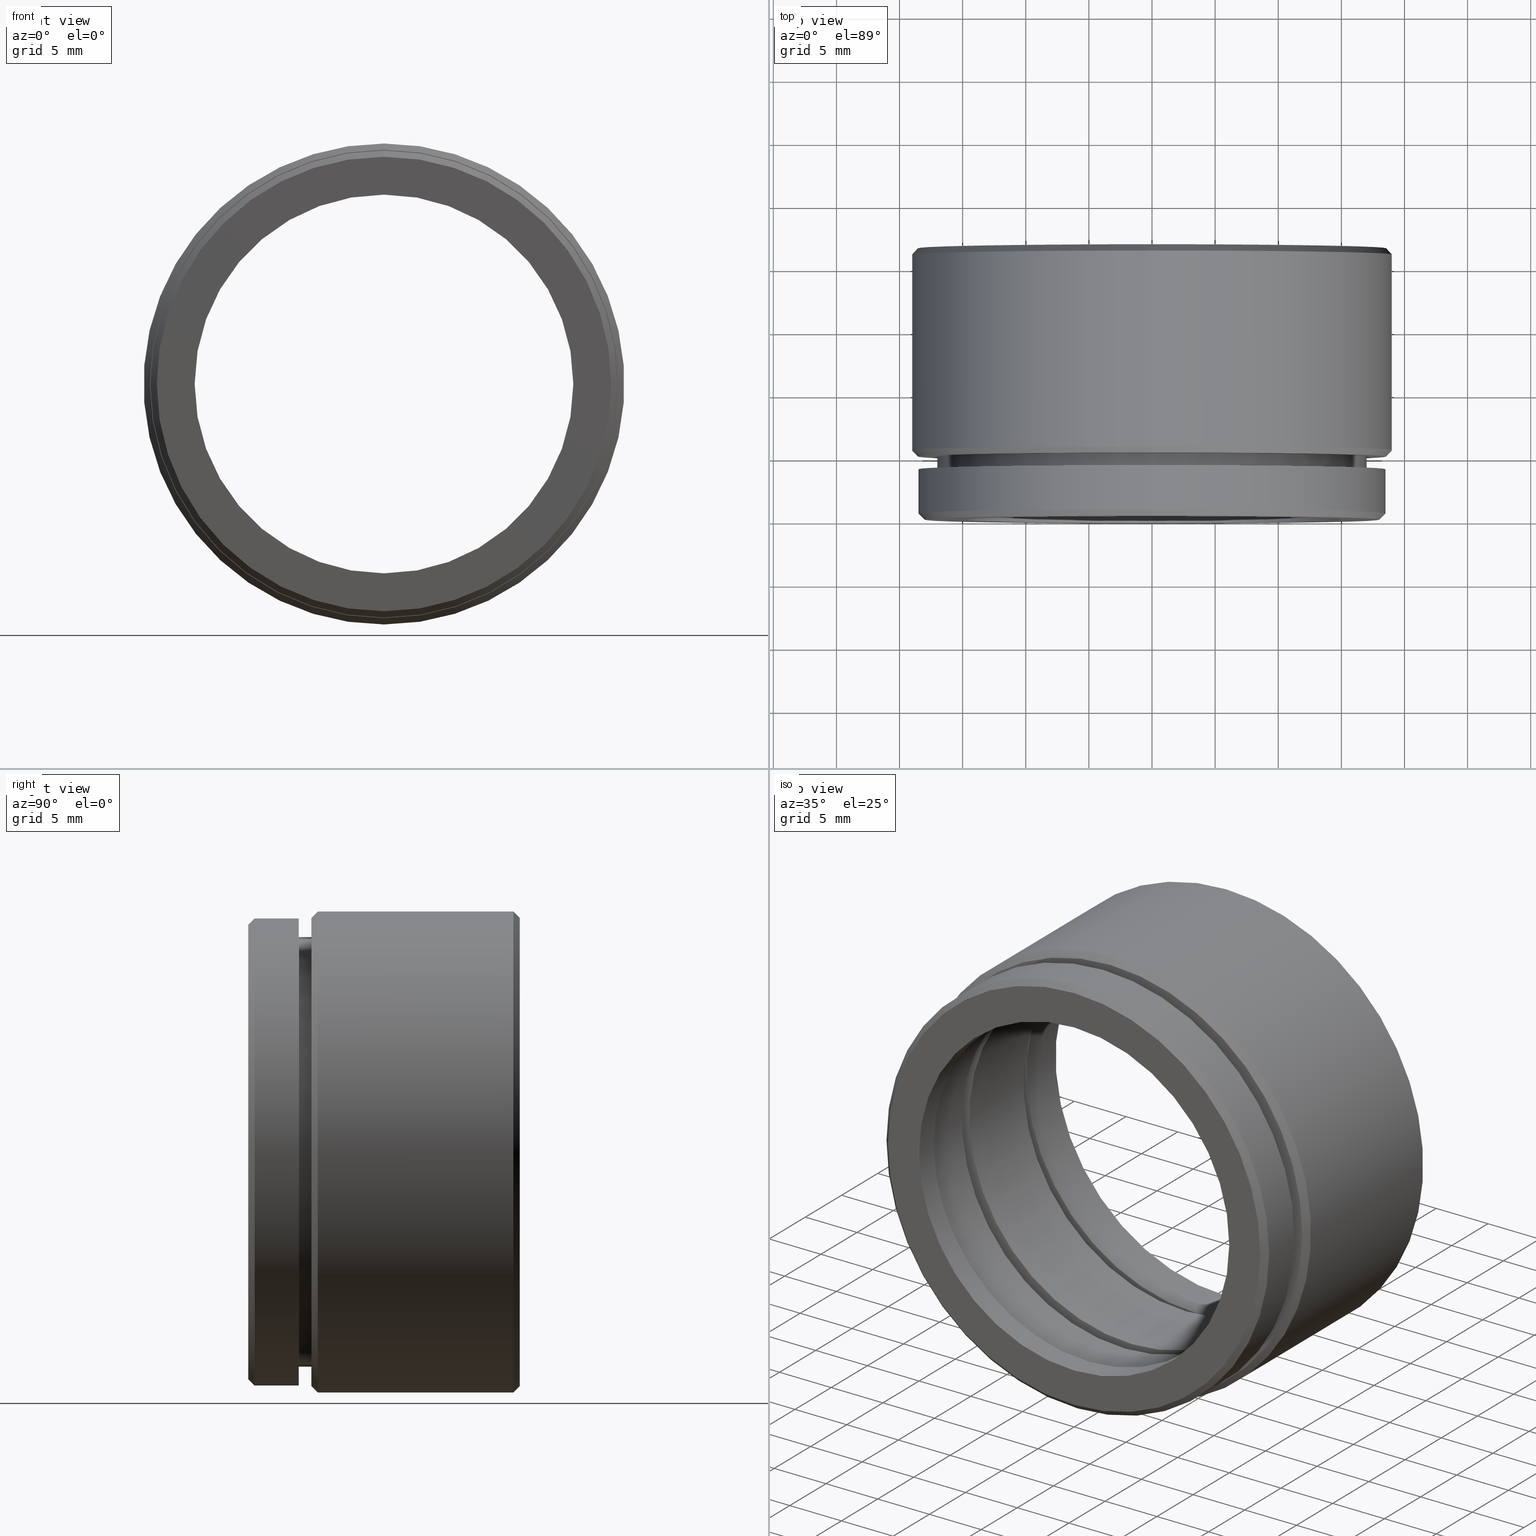
[diagram: canonical four-view strip — front | top / right | iso, engineering-drawing reading convention]
A machine part, canonical four-view strip (front | top / right | iso — engineering-drawing reading convention). The complete STEP part file that produces these views, byte-faithful:
ISO-10303-21;
HEADER;
FILE_DESCRIPTION (( 'STEP AP214' ),
    '1' );
FILE_NAME ('500038.STEP',
    '2019-09-02T07:50:38',
    ( 'user' ),
    ( '΢���й�' ),
    'SwSTEP 2.0',
    'SolidWorks 2016',
    '' );
FILE_SCHEMA (( 'AUTOMOTIVE_DESIGN' ));
ENDSEC;

DATA;
#1 = DIRECTION ( 'NONE',  ( -0.0000000000000000000, -1.000000000000000000, -0.0000000000000000000 ) ) ;
#2 = CIRCLE ( 'NONE', #625, 15.00000000000000000 ) ;
#3 = CIRCLE ( 'NONE', #184, 18.50000000000000000 ) ;
#4 = CIRCLE ( 'NONE', #1034, 15.75000000000000000 ) ;
#5 = FILL_AREA_STYLE_COLOUR ( '', #1070 ) ;
#6 = ADVANCED_FACE ( 'NONE', ( #240 ), #862, .F. ) ;
#7 = CARTESIAN_POINT ( 'NONE',  ( 0.0000000000000000000, 5.000000000000000900, 0.0000000000000000000 ) ) ;
#8 = DIRECTION ( 'NONE',  ( -0.0000000000000000000, -1.000000000000000000, -0.0000000000000000000 ) ) ;
#9 = AXIS2_PLACEMENT_3D ( 'NONE', #758, #551, #838 ) ;
#10 = DIRECTION ( 'NONE',  ( 0.0000000000000000000, 0.0000000000000000000, 1.000000000000000000 ) ) ;
#11 = ORIENTED_EDGE ( 'NONE', *, *, #906, .T. ) ;
#12 = EDGE_CURVE ( 'NONE', #997, #262, #1014, .T. ) ;
#13 = ORIENTED_EDGE ( 'NONE', *, *, #543, .F. ) ;
#14 = ORIENTED_EDGE ( 'NONE', *, *, #112, .F. ) ;
#15 = PLANE ( 'NONE',  #602 ) ;
#16 = ORIENTED_EDGE ( 'NONE', *, *, #188, .F. ) ;
#17 = EDGE_CURVE ( 'NONE', #1010, #1033, #456, .T. ) ;
#18 = DIRECTION ( 'NONE',  ( -0.0000000000000000000, -1.000000000000000000, -0.0000000000000000000 ) ) ;
#19 = DIRECTION ( 'NONE',  ( 0.0000000000000000000, 0.0000000000000000000, 1.000000000000000000 ) ) ;
#20 = VECTOR ( 'NONE', #1009, 1000.000000000000000 ) ;
#21 = CARTESIAN_POINT ( 'NONE',  ( 0.0000000000000000000, 21.50000000000000000, 0.0000000000000000000 ) ) ;
#22 = LINE ( 'NONE', #464, #218 ) ;
#23 = EDGE_CURVE ( 'NONE', #514, #830, #3, .T. ) ;
#24 = STYLED_ITEM ( 'NONE', ( #971 ), #795 ) ;
#25 = DIRECTION ( 'NONE',  ( -0.0000000000000000000, -1.000000000000000000, -0.0000000000000000000 ) ) ;
#26 = CARTESIAN_POINT ( 'NONE',  ( 0.0000000000000000000, 2.000000000000000000, 0.0000000000000000000 ) ) ;
#27 = CARTESIAN_POINT ( 'NONE',  ( 0.0000000000000000000, 0.0000000000000000000, 18.00000000000000000 ) ) ;
#28 = ORIENTED_EDGE ( 'NONE', *, *, #589, .T. ) ;
#29 = EDGE_LOOP ( 'NONE', ( #681, #759, #279, #31 ) ) ;
#30 = EDGE_CURVE ( 'NONE', #337, #224, #343, .T. ) ;
#31 = ORIENTED_EDGE ( 'NONE', *, *, #507, .T. ) ;
#32 = EDGE_LOOP ( 'NONE', ( #381, #421, #11, #69 ) ) ;
#33 = AXIS2_PLACEMENT_3D ( 'NONE', #951, #1059, #986 ) ;
#34 = FACE_BOUND ( 'NONE', #542, .T. ) ;
#35 = EDGE_LOOP ( 'NONE', ( #833, #708 ) ) ;
#36 = CARTESIAN_POINT ( 'NONE',  ( 0.0000000000000000000, 15.50000000000000400, 0.0000000000000000000 ) ) ;
#37 = FACE_OUTER_BOUND ( 'NONE', #29, .T. ) ;
#38 = EDGE_CURVE ( 'NONE', #261, #136, #647, .T. ) ;
#39 = ADVANCED_FACE ( 'NONE', ( #1073 ), #149, .T. ) ;
#40 = ORIENTED_EDGE ( 'NONE', *, *, #987, .F. ) ;
#41 = VERTEX_POINT ( 'NONE', #288 ) ;
#42 = EDGE_LOOP ( 'NONE', ( #641, #214, #580, #1074 ) ) ;
#43 = ORIENTED_EDGE ( 'NONE', *, *, #906, .F. ) ;
#44 = AXIS2_PLACEMENT_3D ( 'NONE', #939, #934, #1029 ) ;
#45 = CARTESIAN_POINT ( 'NONE',  ( 0.0000000000000000000, 0.4999999999999979500, 0.0000000000000000000 ) ) ;
#46 = CIRCLE ( 'NONE', #483, 16.50000000000000000 ) ;
#47 = VECTOR ( 'NONE', #487, 1000.000000000000000 ) ;
#48 = DIRECTION ( 'NONE',  ( -0.0000000000000000000, -1.000000000000000000, -0.0000000000000000000 ) ) ;
#49 = EDGE_CURVE ( 'NONE', #81, #526, #597, .T. ) ;
#50 = DIRECTION ( 'NONE',  ( -0.0000000000000000000, -1.000000000000000000, -0.0000000000000000000 ) ) ;
#51 = AXIS2_PLACEMENT_3D ( 'NONE', #733, #646, #744 ) ;
#52 = ORIENTED_EDGE ( 'NONE', *, *, #710, .F. ) ;
#53 = ORIENTED_EDGE ( 'NONE', *, *, #367, .T. ) ;
#54 = CARTESIAN_POINT ( 'NONE',  ( 0.0000000000000000000, 0.0000000000000000000, 0.0000000000000000000 ) ) ;
#55 = ORIENTED_EDGE ( 'NONE', *, *, #536, .T. ) ;
#56 = VERTEX_POINT ( 'NONE', #817 ) ;
#57 = CIRCLE ( 'NONE', #1018, 19.05000000000000100 ) ;
#58 = PRODUCT_RELATED_PRODUCT_CATEGORY ( 'part', '', ( #498 ) ) ;
#59 = VECTOR ( 'NONE', #194, 1000.000000000000000 ) ;
#60 = CIRCLE ( 'NONE', #466, 15.75000000000000000 ) ;
#61 = EDGE_CURVE ( 'NONE', #526, #136, #1003, .T. ) ;
#62 = DIRECTION ( 'NONE',  ( -0.0000000000000000000, -1.000000000000000000, -0.0000000000000000000 ) ) ;
#63 = EDGE_LOOP ( 'NONE', ( #673, #379, #182, #769 ) ) ;
#64 = VECTOR ( 'NONE', #513, 1000.000000000000000 ) ;
#65 = CARTESIAN_POINT ( 'NONE',  ( 0.0000000000000000000, 0.0000000000000000000, 0.0000000000000000000 ) ) ;
#66 = CARTESIAN_POINT ( 'NONE',  ( 0.0000000000000000000, 21.50000000000000000, 0.0000000000000000000 ) ) ;
#67 = CARTESIAN_POINT ( 'NONE',  ( 0.0000000000000000000, 5.499999999999999100, 19.05000000000000100 ) ) ;
#68 = CARTESIAN_POINT ( 'NONE',  ( 0.0000000000000000000, 8.000000000000000000, 0.0000000000000000000 ) ) ;
#69 = ORIENTED_EDGE ( 'NONE', *, *, #948, .T. ) ;
#70 = ORIENTED_EDGE ( 'NONE', *, *, #307, .T. ) ;
#71 = DIRECTION ( 'NONE',  ( 0.0000000000000000000, 0.0000000000000000000, -1.000000000000000000 ) ) ;
#72 = EDGE_CURVE ( 'NONE', #226, #1036, #849, .T. ) ;
#73 = ADVANCED_FACE ( 'NONE', ( #674 ), #319, .F. ) ;
#74 = EDGE_LOOP ( 'NONE', ( #116, #310, #1054, #144 ) ) ;
#75 = ADVANCED_FACE ( 'NONE', ( #404 ), #731, .F. ) ;
#76 = EDGE_CURVE ( 'NONE', #81, #807, #945, .T. ) ;
#77 = CARTESIAN_POINT ( 'NONE',  ( 2.265596578422603000E-015, 0.4999999999999979500, -18.50000000000000000 ) ) ;
#78 = AXIS2_PLACEMENT_3D ( 'NONE', #476, #649, #588 ) ;
#79 = EDGE_CURVE ( 'NONE', #529, #488, #388, .T. ) ;
#80 = CARTESIAN_POINT ( 'NONE',  ( 0.0000000000000000000, 21.00000000000000000, -19.05000000000000100 ) ) ;
#81 = VERTEX_POINT ( 'NONE', #523 ) ;
#82 = ORIENTED_EDGE ( 'NONE', *, *, #264, .F. ) ;
#83 = ADVANCED_FACE ( 'NONE', ( #909, #604 ), #452, .T. ) ;
#84 = ORIENTED_EDGE ( 'NONE', *, *, #79, .T. ) ;
#85 = CARTESIAN_POINT ( 'NONE',  ( 0.0000000000000000000, 0.0000000000000000000, 0.0000000000000000000 ) ) ;
#86 = DIRECTION ( 'NONE',  ( -0.0000000000000000000, -1.000000000000000000, -0.0000000000000000000 ) ) ;
#87 = COLOUR_RGB ( '',1.000000000000000000, 1.000000000000000000, 1.000000000000000000 ) ;
#88 = SHAPE_DEFINITION_REPRESENTATION ( #154, #740 ) ;
#89 = CIRCLE ( 'NONE', #1065, 18.50000000000000000 ) ;
#90 = EDGE_CURVE ( 'NONE', #627, #897, #374, .T. ) ;
#91 = ORIENTED_EDGE ( 'NONE', *, *, #665, .F. ) ;
#92 = CIRCLE ( 'NONE', #44, 18.55000000000000400 ) ;
#93 = UNCERTAINTY_MEASURE_WITH_UNIT (LENGTH_MEASURE( 1.000000000000000100E-005 ), #694, 'distance_accuracy_value', 'NONE');
#94 = DIRECTION ( 'NONE',  ( 0.0000000000000000000, -0.0000000000000000000, 1.000000000000000000 ) ) ;
#95 = AXIS2_PLACEMENT_3D ( 'NONE', #624, #610, #788 ) ;
#96 = PLANE ( 'NONE',  #575 ) ;
#97 = DIRECTION ( 'NONE',  ( 8.659560562354902000E-017, -0.7071067811865500200, 0.7071067811865450200 ) ) ;
#98 = VERTEX_POINT ( 'NONE', #417 ) ;
#99 = CARTESIAN_POINT ( 'NONE',  ( 2.020667218593133100E-015, 21.00000000000000400, 16.50000000000000000 ) ) ;
#100 = CARTESIAN_POINT ( 'NONE',  ( 1.928818708657081300E-015, 2.000000000000000000, 15.75000000000000000 ) ) ;
#101 = EDGE_LOOP ( 'NONE', ( #70, #84, #1081, #40 ) ) ;
#102 = DIRECTION ( 'NONE',  ( 0.0000000000000000000, 0.0000000000000000000, -1.000000000000000000 ) ) ;
#103 = ORIENTED_EDGE ( 'NONE', *, *, #1032, .T. ) ;
#104 = DIRECTION ( 'NONE',  ( 0.0000000000000000000, 0.0000000000000000000, -1.000000000000000000 ) ) ;
#105 = ORIENTED_EDGE ( 'NONE', *, *, #685, .F. ) ;
#106 = DIRECTION ( 'NONE',  ( 0.0000000000000000000, 1.000000000000000000, 0.0000000000000000000 ) ) ;
#107 = CIRCLE ( 'NONE', #749, 18.55000000000000400 ) ;
#108 = EDGE_CURVE ( 'NONE', #128, #81, #645, .T. ) ;
#109 =( GEOMETRIC_REPRESENTATION_CONTEXT ( 3 ) GLOBAL_UNCERTAINTY_ASSIGNED_CONTEXT ( ( #362 ) ) GLOBAL_UNIT_ASSIGNED_CONTEXT ( ( #200, #193, #192 ) ) REPRESENTATION_CONTEXT ( 'NONE', 'WORKASPACE' ) );
#110 = CARTESIAN_POINT ( 'NONE',  ( 0.0000000000000000000, 21.00000000000000400, 0.0000000000000000000 ) ) ;
#111 = DIRECTION ( 'NONE',  ( 8.659560562354955000E-017, 0.7071067811865458000, -0.7071067811865492400 ) ) ;
#112 = EDGE_CURVE ( 'NONE', #981, #1010, #133, .T. ) ;
#113 = ORIENTED_EDGE ( 'NONE', *, *, #502, .F. ) ;
#114 = CARTESIAN_POINT ( 'NONE',  ( 17.00000000000000000, 5.000000000000000900, 0.0000000000000000000 ) ) ;
#115 = ORIENTED_EDGE ( 'NONE', *, *, #205, .T. ) ;
#116 = ORIENTED_EDGE ( 'NONE', *, *, #677, .F. ) ;
#117 = ORIENTED_EDGE ( 'NONE', *, *, #613, .F. ) ;
#118 = MECHANICAL_DESIGN_GEOMETRIC_PRESENTATION_REPRESENTATION (  '', ( #538 ), #872 ) ;
#119 = DIRECTION ( 'NONE',  ( 0.0000000000000000000, -0.0000000000000000000, 1.000000000000000000 ) ) ;
#120 = DIRECTION ( 'NONE',  ( -0.0000000000000000000, -1.000000000000000000, -0.0000000000000000000 ) ) ;
#121 = SURFACE_STYLE_FILL_AREA ( #1063 ) ;
#122 = CARTESIAN_POINT ( 'NONE',  ( 0.0000000000000000000, 4.000000000000000000, -18.50000000000000000 ) ) ;
#123 = DIRECTION ( 'NONE',  ( 0.0000000000000000000, 0.0000000000000000000, 1.000000000000000000 ) ) ;
#124 = CIRCLE ( 'NONE', #651, 17.00000000000000000 ) ;
#125 = DIRECTION ( 'NONE',  ( -0.0000000000000000000, -1.000000000000000000, -0.0000000000000000000 ) ) ;
#126 = AXIS2_PLACEMENT_3D ( 'NONE', #936, #432, #409 ) ;
#127 = ORIENTED_EDGE ( 'NONE', *, *, #1060, .F. ) ;
#128 = VERTEX_POINT ( 'NONE', #728 ) ;
#129 = EDGE_CURVE ( 'NONE', #136, #807, #283, .T. ) ;
#130 = ORIENTED_EDGE ( 'NONE', *, *, #710, .T. ) ;
#131 = DIRECTION ( 'NONE',  ( 0.0000000000000000000, 0.0000000000000000000, -1.000000000000000000 ) ) ;
#132 = AXIS2_PLACEMENT_3D ( 'NONE', #382, #179, #461 ) ;
#133 = CIRCLE ( 'NONE', #377, 16.50000000000000000 ) ;
#134 = CIRCLE ( 'NONE', #528, 17.64999999999999900 ) ;
#135 = VERTEX_POINT ( 'NONE', #1049 ) ;
#136 = VERTEX_POINT ( 'NONE', #327 ) ;
#137 = CARTESIAN_POINT ( 'NONE',  ( 0.0000000000000000000, 5.000000000000000900, 0.0000000000000000000 ) ) ;
#138 = ADVANCED_FACE ( 'NONE', ( #415 ), #1015, .T. ) ;
#139 = AXIS2_PLACEMENT_3D ( 'NONE', #974, #979, #885 ) ;
#140 = AXIS2_PLACEMENT_3D ( 'NONE', #863, #881, #777 ) ;
#141 = DIRECTION ( 'NONE',  ( 0.0000000000000000000, 0.0000000000000000000, -1.000000000000000000 ) ) ;
#142 = ORIENTED_EDGE ( 'NONE', *, *, #1019, .T. ) ;
#143 = EDGE_LOOP ( 'NONE', ( #312, #302, #53, #82 ) ) ;
#144 = ORIENTED_EDGE ( 'NONE', *, *, #536, .F. ) ;
#145 = ORIENTED_EDGE ( 'NONE', *, *, #478, .F. ) ;
#146 = ORIENTED_EDGE ( 'NONE', *, *, #507, .F. ) ;
#147 = EDGE_CURVE ( 'NONE', #529, #293, #445, .T. ) ;
#148 = PRODUCT_DEFINITION_FORMATION_WITH_SPECIFIED_SOURCE ( '�κ�', '', #498, .NOT_KNOWN. ) ;
#149 = CYLINDRICAL_SURFACE ( 'NONE', #847, 18.50000000000000000 ) ;
#150 = CONICAL_SURFACE ( 'NONE', #698, 16.24999999999999300, 0.7853981633974447300 ) ;
#151 = LINE ( 'NONE', #256, #576 ) ;
#152 = EDGE_CURVE ( 'NONE', #1020, #261, #603, .T. ) ;
#153 = DIRECTION ( 'NONE',  ( -0.0000000000000000000, -1.000000000000000000, -0.0000000000000000000 ) ) ;
#154 = PRODUCT_DEFINITION_SHAPE ( 'NONE', 'NONE',  #207 ) ;
#155 = AXIS2_PLACEMENT_3D ( 'NONE', #403, #995, #611 ) ;
#156 = CARTESIAN_POINT ( 'NONE',  ( 0.0000000000000000000, 0.0000000000000000000, 0.0000000000000000000 ) ) ;
#157 = ORIENTED_EDGE ( 'NONE', *, *, #558, .T. ) ;
#158 =( LENGTH_UNIT ( ) NAMED_UNIT ( * ) SI_UNIT ( .MILLI., .METRE. ) );
#159 = ORIENTED_EDGE ( 'NONE', *, *, #722, .T. ) ;
#160 = CYLINDRICAL_SURFACE ( 'NONE', #140, 16.50000000000000000 ) ;
#161 = AXIS2_PLACEMENT_3D ( 'NONE', #324, #637, #988 ) ;
#162 = CARTESIAN_POINT ( 'NONE',  ( 1.928818708657081300E-015, 15.50000000000000400, 15.75000000000000000 ) ) ;
#163 = ORIENTED_EDGE ( 'NONE', *, *, #640, .T. ) ;
#164 = CIRCLE ( 'NONE', #962, 15.00000000000000000 ) ;
#165 = DIRECTION ( 'NONE',  ( 8.659560562354955000E-017, 0.7071067811865456900, -0.7071067811865493500 ) ) ;
#166 = UNCERTAINTY_MEASURE_WITH_UNIT (LENGTH_MEASURE( 1.000000000000000100E-005 ), #784, 'distance_accuracy_value', 'NONE');
#167 = DIRECTION ( 'NONE',  ( 0.0000000000000000000, 1.000000000000000000, 0.0000000000000000000 ) ) ;
#168 = CARTESIAN_POINT ( 'NONE',  ( 0.0000000000000000000, 16.00000000000000000, 0.0000000000000000000 ) ) ;
#169 = EDGE_CURVE ( 'NONE', #807, #136, #994, .T. ) ;
#170 = DIRECTION ( 'NONE',  ( 0.0000000000000000000, 0.0000000000000000000, 1.000000000000000000 ) ) ;
#171 = CARTESIAN_POINT ( 'NONE',  ( 2.161501600495078300E-015, 17.00000000000000000, 17.64999999999999900 ) ) ;
#172 = FILL_AREA_STYLE ('',( #1041 ) ) ;
#173 = EDGE_LOOP ( 'NONE', ( #911, #1023, #1057, #333 ) ) ;
#174 = DIRECTION ( 'NONE',  ( 0.0000000000000000000, 0.0000000000000000000, -1.000000000000000000 ) ) ;
#175 = PLANE ( 'NONE',  #155 ) ;
#176 = EDGE_LOOP ( 'NONE', ( #117, #967 ) ) ;
#177 = CARTESIAN_POINT ( 'NONE',  ( 0.0000000000000000000, 0.0000000000000000000, 0.0000000000000000000 ) ) ;
#178 = ORIENTED_EDGE ( 'NONE', *, *, #589, .F. ) ;
#179 = DIRECTION ( 'NONE',  ( -0.0000000000000000000, -1.000000000000000000, -0.0000000000000000000 ) ) ;
#180 = FACE_BOUND ( 'NONE', #1051, .T. ) ;
#181 = VERTEX_POINT ( 'NONE', #717 ) ;
#182 = ORIENTED_EDGE ( 'NONE', *, *, #693, .F. ) ;
#183 = DIRECTION ( 'NONE',  ( 0.0000000000000000000, 0.0000000000000000000, -1.000000000000000000 ) ) ;
#184 = AXIS2_PLACEMENT_3D ( 'NONE', #564, #586, #131 ) ;
#185 = EDGE_LOOP ( 'NONE', ( #896, #668 ) ) ;
#186 = ORIENTED_EDGE ( 'NONE', *, *, #292, .T. ) ;
#187 = CIRCLE ( 'NONE', #760, 17.64999999999999900 ) ;
#188 = EDGE_CURVE ( 'NONE', #385, #998, #985, .T. ) ;
#189 = DIRECTION ( 'NONE',  ( 0.0000000000000000000, 1.000000000000000000, 0.0000000000000000000 ) ) ;
#190 = ORIENTED_EDGE ( 'NONE', *, *, #665, .T. ) ;
#191 = COLOUR_RGB ( '',1.000000000000000000, 1.000000000000000000, 1.000000000000000000 ) ;
#192 =( NAMED_UNIT ( * ) SI_UNIT ( $, .STERADIAN. ) SOLID_ANGLE_UNIT ( ) );
#193 =( NAMED_UNIT ( * ) PLANE_ANGLE_UNIT ( ) SI_UNIT ( $, .RADIAN. ) );
#194 = DIRECTION ( 'NONE',  ( -0.0000000000000000000, -1.000000000000000000, -0.0000000000000000000 ) ) ;
#195 = VERTEX_POINT ( 'NONE', #598 ) ;
#196 = STYLED_ITEM ( 'NONE', ( #871 ), #39 ) ;
#197 = AXIS2_PLACEMENT_3D ( 'NONE', #399, #222, #825 ) ;
#198 = EDGE_LOOP ( 'NONE', ( #706, #888, #868, #933 ) ) ;
#199 = EDGE_LOOP ( 'NONE', ( #965, #964 ) ) ;
#200 =( LENGTH_UNIT ( ) NAMED_UNIT ( * ) SI_UNIT ( .MILLI., .METRE. ) );
#201 = CIRCLE ( 'NONE', #629, 15.75000000000000000 ) ;
#202 = CYLINDRICAL_SURFACE ( 'NONE', #411, 17.64999999999999900 ) ;
#203 = EDGE_LOOP ( 'NONE', ( #159, #186, #961, #980 ) ) ;
#204 = VECTOR ( 'NONE', #1048, 1000.000000000000100 ) ;
#205 = EDGE_CURVE ( 'NONE', #830, #514, #699, .T. ) ;
#206 = SURFACE_STYLE_FILL_AREA ( #804 ) ;
#207 = PRODUCT_DEFINITION ( 'δ֪', '', #148, #642 ) ;
#208 = FACE_OUTER_BOUND ( 'NONE', #233, .T. ) ;
#209 = ADVANCED_FACE ( 'NONE', ( #920 ), #150, .F. ) ;
#210 = CARTESIAN_POINT ( 'NONE',  ( 0.0000000000000000000, 2.000000000000000000, 0.0000000000000000000 ) ) ;
#211 = DIRECTION ( 'NONE',  ( 0.0000000000000000000, 0.0000000000000000000, -1.000000000000000000 ) ) ;
#212 = DIRECTION ( 'NONE',  ( -0.0000000000000000000, -1.000000000000000000, -0.0000000000000000000 ) ) ;
#213 = ORIENTED_EDGE ( 'NONE', *, *, #650, .T. ) ;
#214 = ORIENTED_EDGE ( 'NONE', *, *, #152, .F. ) ;
#215 = AXIS2_PLACEMENT_3D ( 'NONE', #905, #530, #450 ) ;
#216 = SURFACE_STYLE_USAGE ( .BOTH. , #221 ) ;
#217 = DIRECTION ( 'NONE',  ( 0.0000000000000000000, 0.0000000000000000000, 1.000000000000000000 ) ) ;
#218 = VECTOR ( 'NONE', #782, 1000.000000000000000 ) ;
#219 = CIRCLE ( 'NONE', #1028, 16.64999999999999900 ) ;
#220 = PRESENTATION_LAYER_ASSIGNMENT (  '', '', ( #196 ) ) ;
#221 = SURFACE_SIDE_STYLE ('',( #572 ) ) ;
#222 = DIRECTION ( 'NONE',  ( -0.0000000000000000000, -1.000000000000000000, -0.0000000000000000000 ) ) ;
#223 = ORIENTED_EDGE ( 'NONE', *, *, #921, .T. ) ;
#224 = VERTEX_POINT ( 'NONE', #533 ) ;
#225 = FILL_AREA_STYLE ('',( #274 ) ) ;
#226 = VERTEX_POINT ( 'NONE', #365 ) ;
#227 = LINE ( 'NONE', #80, #745 ) ;
#228 = VECTOR ( 'NONE', #429, 1000.000000000000000 ) ;
#229 = ORIENTED_EDGE ( 'NONE', *, *, #129, .T. ) ;
#230 = COLOUR_RGB ( '',1.000000000000000000, 1.000000000000000000, 1.000000000000000000 ) ;
#231 = DIRECTION ( 'NONE',  ( -0.0000000000000000000, -1.000000000000000000, -0.0000000000000000000 ) ) ;
#232 =( NAMED_UNIT ( * ) PLANE_ANGLE_UNIT ( ) SI_UNIT ( $, .RADIAN. ) );
#233 = EDGE_LOOP ( 'NONE', ( #163, #754, #494, #563 ) ) ;
#234 = ORIENTED_EDGE ( 'NONE', *, *, #607, .F. ) ;
#235 = AXIS2_PLACEMENT_3D ( 'NONE', #570, #1062, #715 ) ;
#236 = EDGE_CURVE ( 'NONE', #56, #98, #764, .T. ) ;
#237 = CARTESIAN_POINT ( 'NONE',  ( 0.0000000000000000000, 16.00000000000000000, -17.64999999999999900 ) ) ;
#238 = LINE ( 'NONE', #387, #776 ) ;
#239 = LINE ( 'NONE', #1044, #606 ) ;
#240 = FACE_OUTER_BOUND ( 'NONE', #328, .T. ) ;
#241 = CARTESIAN_POINT ( 'NONE',  ( 0.0000000000000000000, 8.000000000000000000, 0.0000000000000000000 ) ) ;
#242 = CARTESIAN_POINT ( 'NONE',  ( 0.0000000000000000000, 0.0000000000000000000, -15.00000000000000000 ) ) ;
#243 = EDGE_CURVE ( 'NONE', #998, #1036, #890, .T. ) ;
#244 = CARTESIAN_POINT ( 'NONE',  ( 0.0000000000000000000, 7.000000000000000000, 0.0000000000000000000 ) ) ;
#245 = CARTESIAN_POINT ( 'NONE',  ( 0.0000000000000000000, 0.0000000000000000000, 0.0000000000000000000 ) ) ;
#246 = ORIENTED_EDGE ( 'NONE', *, *, #954, .F. ) ;
#247 = ORIENTED_EDGE ( 'NONE', *, *, #321, .T. ) ;
#248 = EDGE_CURVE ( 'NONE', #261, #1020, #976, .T. ) ;
#249 = ORIENTED_EDGE ( 'NONE', *, *, #571, .T. ) ;
#250 = CARTESIAN_POINT ( 'NONE',  ( 0.0000000000000000000, 0.0000000000000000000, -17.00000000000000000 ) ) ;
#251 = CARTESIAN_POINT ( 'NONE',  ( 1.928818708657081300E-015, 0.0000000000000000000, 15.75000000000000000 ) ) ;
#252 = LINE ( 'NONE', #1084, #20 ) ;
#253 = DIRECTION ( 'NONE',  ( -0.0000000000000000000, -1.000000000000000000, -0.0000000000000000000 ) ) ;
#254 = FACE_OUTER_BOUND ( 'NONE', #1083, .T. ) ;
#255 = PRESENTATION_STYLE_ASSIGNMENT (( #553 ) ) ;
#256 = CARTESIAN_POINT ( 'NONE',  ( 2.020667218593133100E-015, 0.0000000000000000000, 16.50000000000000000 ) ) ;
#257 =( GEOMETRIC_REPRESENTATION_CONTEXT ( 3 ) GLOBAL_UNCERTAINTY_ASSIGNED_CONTEXT ( ( #93 ) ) GLOBAL_UNIT_ASSIGNED_CONTEXT ( ( #694, #712, #444 ) ) REPRESENTATION_CONTEXT ( 'NONE', 'WORKASPACE' ) );
#258 = DIRECTION ( 'NONE',  ( -0.0000000000000000000, -1.000000000000000000, -0.0000000000000000000 ) ) ;
#259 = EDGE_CURVE ( 'NONE', #135, #1033, #46, .T. ) ;
#260 = CARTESIAN_POINT ( 'NONE',  ( 0.0000000000000000000, 15.50000000000000400, -15.75000000000000000 ) ) ;
#261 = VERTEX_POINT ( 'NONE', #666 ) ;
#262 = VERTEX_POINT ( 'NONE', #122 ) ;
#263 = ORIENTED_EDGE ( 'NONE', *, *, #640, .F. ) ;
#264 = EDGE_CURVE ( 'NONE', #903, #867, #265, .T. ) ;
#265 = LINE ( 'NONE', #396, #426 ) ;
#266 = CARTESIAN_POINT ( 'NONE',  ( 0.0000000000000000000, 7.000000000000000000, 0.0000000000000000000 ) ) ;
#267 = CARTESIAN_POINT ( 'NONE',  ( 0.0000000000000000000, 16.00000000000000000, 0.0000000000000000000 ) ) ;
#268 = LINE ( 'NONE', #989, #658 ) ;
#269 = ORIENTED_EDGE ( 'NONE', *, *, #17, .T. ) ;
#270 = DIRECTION ( 'NONE',  ( 0.0000000000000000000, 0.0000000000000000000, 1.000000000000000000 ) ) ;
#271 = AXIS2_PLACEMENT_3D ( 'NONE', #735, #664, #1068 ) ;
#272 = FACE_OUTER_BOUND ( 'NONE', #32, .T. ) ;
#273 = CARTESIAN_POINT ( 'NONE',  ( 0.0000000000000000000, 4.000000000000000900, 0.0000000000000000000 ) ) ;
#274 = FILL_AREA_STYLE_COLOUR ( '', #87 ) ;
#275 = DIRECTION ( 'NONE',  ( -0.0000000000000000000, -1.000000000000000000, -0.0000000000000000000 ) ) ;
#276 = DIRECTION ( 'NONE',  ( 0.0000000000000000000, -0.0000000000000000000, 1.000000000000000000 ) ) ;
#277 = EDGE_LOOP ( 'NONE', ( #916, #918 ) ) ;
#278 = EDGE_CURVE ( 'NONE', #488, #652, #201, .T. ) ;
#279 = ORIENTED_EDGE ( 'NONE', *, *, #304, .T. ) ;
#280 = DIRECTION ( 'NONE',  ( -0.0000000000000000000, -1.000000000000000000, -0.0000000000000000000 ) ) ;
#281 = DIRECTION ( 'NONE',  ( -0.0000000000000000000, -1.000000000000000000, -0.0000000000000000000 ) ) ;
#282 = ORIENTED_EDGE ( 'NONE', *, *, #1060, .T. ) ;
#283 = CIRCLE ( 'NONE', #874, 19.05000000000000100 ) ;
#284 = EDGE_CURVE ( 'NONE', #1036, #226, #124, .T. ) ;
#285 = DIRECTION ( 'NONE',  ( 0.0000000000000000000, 1.000000000000000000, 0.0000000000000000000 ) ) ;
#286 = SURFACE_STYLE_FILL_AREA ( #172 ) ;
#287 = CONICAL_SURFACE ( 'NONE', #9, 19.05000000000000100, 0.7853981633974447300 ) ;
#288 = CARTESIAN_POINT ( 'NONE',  ( 2.039036920580343100E-015, 8.000000000000000000, 16.64999999999999900 ) ) ;
#289 = DIRECTION ( 'NONE',  ( 0.0000000000000000000, 0.0000000000000000000, 1.000000000000000000 ) ) ;
#290 = CARTESIAN_POINT ( 'NONE',  ( 0.0000000000000000000, 2.000000000000000000, -15.00000000000000000 ) ) ;
#291 = CARTESIAN_POINT ( 'NONE',  ( 0.0000000000000000000, 0.0000000000000000000, 0.0000000000000000000 ) ) ;
#292 = EDGE_CURVE ( 'NONE', #981, #135, #151, .T. ) ;
#293 = VERTEX_POINT ( 'NONE', #959 ) ;
#294 = STYLED_ITEM ( 'NONE', ( #592 ), #414 ) ;
#295 = DIRECTION ( 'NONE',  ( -0.0000000000000000000, -1.000000000000000000, -0.0000000000000000000 ) ) ;
#296 = ADVANCED_FACE ( 'NONE', ( #824 ), #893, .F. ) ;
#297 = VERTEX_POINT ( 'NONE', #100 ) ;
#298 = DIRECTION ( 'NONE',  ( -0.0000000000000000000, 1.000000000000000000, -0.0000000000000000000 ) ) ;
#299 = UNCERTAINTY_MEASURE_WITH_UNIT (LENGTH_MEASURE( 1.000000000000000100E-005 ), #628, 'distance_accuracy_value', 'NONE');
#300 = FACE_OUTER_BOUND ( 'NONE', #844, .T. ) ;
#301 = CARTESIAN_POINT ( 'NONE',  ( 0.0000000000000000000, 16.00000000000000000, 0.0000000000000000000 ) ) ;
#302 = ORIENTED_EDGE ( 'NONE', *, *, #975, .T. ) ;
#303 = AXIS2_PLACEMENT_3D ( 'NONE', #210, #8, #211 ) ;
#304 = EDGE_CURVE ( 'NONE', #1022, #756, #850, .T. ) ;
#305 = ADVANCED_FACE ( 'NONE', ( #37 ), #753, .F. ) ;
#306 = CARTESIAN_POINT ( 'NONE',  ( 0.0000000000000000000, 21.00000000000000400, 0.0000000000000000000 ) ) ;
#307 = EDGE_CURVE ( 'NONE', #794, #529, #661, .T. ) ;
#308 = CARTESIAN_POINT ( 'NONE',  ( 0.0000000000000000000, 5.000000000000000900, 18.55000000000000100 ) ) ;
#309 = ORIENTED_EDGE ( 'NONE', *, *, #571, .F. ) ;
#310 = ORIENTED_EDGE ( 'NONE', *, *, #339, .F. ) ;
#311 = ORIENTED_EDGE ( 'NONE', *, *, #72, .F. ) ;
#312 = ORIENTED_EDGE ( 'NONE', *, *, #329, .F. ) ;
#313 = DIRECTION ( 'NONE',  ( -0.0000000000000000000, -1.000000000000000000, -0.0000000000000000000 ) ) ;
#314 = CONICAL_SURFACE ( 'NONE', #772, 18.55000000000000100, 0.7853981633974509400 ) ;
#315 = ADVANCED_FACE ( 'NONE', ( #780 ), #470, .F. ) ;
#316 = FACE_OUTER_BOUND ( 'NONE', #938, .T. ) ;
#317 = EDGE_CURVE ( 'NONE', #981, #963, #686, .T. ) ;
#318 = CARTESIAN_POINT ( 'NONE',  ( 0.0000000000000000000, 21.00000000000000400, -16.50000000000000000 ) ) ;
#319 = CONICAL_SURFACE ( 'NONE', #579, 16.99999999999999300, 0.7853981633974447300 ) ;
#320 = CARTESIAN_POINT ( 'NONE',  ( 0.0000000000000000000, 0.0000000000000000000, 0.0000000000000000000 ) ) ;
#321 = EDGE_CURVE ( 'NONE', #639, #897, #351, .T. ) ;
#322 = PRESENTATION_LAYER_ASSIGNMENT (  '', '', ( #294 ) ) ;
#323 = DIRECTION ( 'NONE',  ( 0.0000000000000000000, 0.0000000000000000000, -1.000000000000000000 ) ) ;
#324 = CARTESIAN_POINT ( 'NONE',  ( 0.0000000000000000000, 4.000000000000000000, 0.0000000000000000000 ) ) ;
#325 = DIRECTION ( 'NONE',  ( 0.0000000000000000000, 0.0000000000000000000, 1.000000000000000000 ) ) ;
#326 = PRESENTATION_LAYER_ASSIGNMENT (  '', '', ( #375 ) ) ;
#327 = CARTESIAN_POINT ( 'NONE',  ( 2.332952152375707600E-015, 5.499999999999999100, -19.05000000000000100 ) ) ;
#328 = EDGE_LOOP ( 'NONE', ( #234, #247, #249, #345 ) ) ;
#329 = EDGE_CURVE ( 'NONE', #41, #903, #219, .T. ) ;
#330 = EDGE_LOOP ( 'NONE', ( #157, #103 ) ) ;
#331 = CARTESIAN_POINT ( 'NONE',  ( 18.50000000000000000, 4.000000000000000000, 0.0000000000000000000 ) ) ;
#332 = CIRCLE ( 'NONE', #901, 17.00000000000000000 ) ;
#333 = ORIENTED_EDGE ( 'NONE', *, *, #1082, .T. ) ;
#334 = PLANE ( 'NONE',  #750 ) ;
#335 = DIRECTION ( 'NONE',  ( -0.0000000000000000000, -1.000000000000000000, -0.0000000000000000000 ) ) ;
#336 =( GEOMETRIC_REPRESENTATION_CONTEXT ( 3 ) GLOBAL_UNCERTAINTY_ASSIGNED_CONTEXT ( ( #801 ) ) GLOBAL_UNIT_ASSIGNED_CONTEXT ( ( #405, #923, #559 ) ) REPRESENTATION_CONTEXT ( 'NONE', 'WORKASPACE' ) );
#337 = VERTEX_POINT ( 'NONE', #27 ) ;
#338 = SURFACE_SIDE_STYLE ('',( #121 ) ) ;
#339 = EDGE_CURVE ( 'NONE', #529, #794, #4, .T. ) ;
#340 = CYLINDRICAL_SURFACE ( 'NONE', #821, 15.75000000000000000 ) ;
#341 = CIRCLE ( 'NONE', #395, 16.64999999999999900 ) ;
#342 = DIRECTION ( 'NONE',  ( -0.0000000000000000000, -1.000000000000000000, -0.0000000000000000000 ) ) ;
#343 = CIRCLE ( 'NONE', #126, 18.00000000000000000 ) ;
#344 = DIRECTION ( 'NONE',  ( 0.0000000000000000000, 0.0000000000000000000, -1.000000000000000000 ) ) ;
#345 = ORIENTED_EDGE ( 'NONE', *, *, #582, .F. ) ;
#346 = EDGE_LOOP ( 'NONE', ( #819, #716, #990, #892 ) ) ;
#347 = EDGE_LOOP ( 'NONE', ( #654, #704 ) ) ;
#348 = DIRECTION ( 'NONE',  ( -0.0000000000000000000, -1.000000000000000000, -0.0000000000000000000 ) ) ;
#349 = CARTESIAN_POINT ( 'NONE',  ( 0.0000000000000000000, 21.50000000000000000, -18.55000000000000400 ) ) ;
#350 = PRESENTATION_LAYER_ASSIGNMENT (  '', '', ( #538 ) ) ;
#351 = LINE ( 'NONE', #832, #984 ) ;
#352 = FACE_OUTER_BOUND ( 'NONE', #525, .T. ) ;
#353 = DIRECTION ( 'NONE',  ( 0.0000000000000000000, 0.0000000000000000000, -1.000000000000000000 ) ) ;
#354 = EDGE_CURVE ( 'NONE', #950, #526, #227, .T. ) ;
#355 = DIRECTION ( 'NONE',  ( 0.0000000000000000000, 0.0000000000000000000, -1.000000000000000000 ) ) ;
#356 = ORIENTED_EDGE ( 'NONE', *, *, #650, .F. ) ;
#357 = CARTESIAN_POINT ( 'NONE',  ( 2.161501600495078300E-015, 16.00000000000000000, 17.64999999999999900 ) ) ;
#358 = EDGE_LOOP ( 'NONE', ( #383, #626 ) ) ;
#359 = DIRECTION ( 'NONE',  ( -0.0000000000000000000, -1.000000000000000000, -0.0000000000000000000 ) ) ;
#360 = CIRCLE ( 'NONE', #680, 16.24999999999999300 ) ;
#361 = CARTESIAN_POINT ( 'NONE',  ( 16.50000000000000000, 21.50000000000000000, 0.0000000000000000000 ) ) ;
#362 = UNCERTAINTY_MEASURE_WITH_UNIT (LENGTH_MEASURE( 1.000000000000000100E-005 ), #200, 'distance_accuracy_value', 'NONE');
#363 = FACE_OUTER_BOUND ( 'NONE', #358, .T. ) ;
#364 = DIRECTION ( 'NONE',  ( 0.0000000000000000000, 0.0000000000000000000, -1.000000000000000000 ) ) ;
#365 = CARTESIAN_POINT ( 'NONE',  ( 2.081899558550500300E-015, 4.000000000000000900, 17.00000000000000000 ) ) ;
#366 = CARTESIAN_POINT ( 'NONE',  ( 0.0000000000000000000, 21.00000000000000000, 0.0000000000000000000 ) ) ;
#367 = EDGE_CURVE ( 'NONE', #683, #867, #691, .T. ) ;
#368 = ADVANCED_FACE ( 'NONE', ( #952 ), #1039, .T. ) ;
#369 = PLANE ( 'NONE',  #741 ) ;
#370 = ADVANCED_FACE ( 'NONE', ( #506 ), #495, .T. ) ;
#371 = CARTESIAN_POINT ( 'NONE',  ( 0.0000000000000000000, 0.0000000000000000000, -15.00000000000000000 ) ) ;
#372 = CARTESIAN_POINT ( 'NONE',  ( 0.0000000000000000000, 8.000000000000000000, 0.0000000000000000000 ) ) ;
#373 = CARTESIAN_POINT ( 'NONE',  ( 15.75000000000000000, 16.00000000000000000, 0.0000000000000000000 ) ) ;
#374 = CIRCLE ( 'NONE', #504, 15.00000000000000000 ) ;
#375 = STYLED_ITEM ( 'NONE', ( #1043 ), #740 ) ;
#376 = DIRECTION ( 'NONE',  ( -0.0000000000000000000, -1.000000000000000000, -0.0000000000000000000 ) ) ;
#377 = AXIS2_PLACEMENT_3D ( 'NONE', #110, #689, #10 ) ;
#378 = EDGE_LOOP ( 'NONE', ( #574, #518, #229, #618 ) ) ;
#379 = ORIENTED_EDGE ( 'NONE', *, *, #108, .T. ) ;
#380 = ADVANCED_FACE ( 'NONE', ( #519 ), #839, .T. ) ;
#381 = ORIENTED_EDGE ( 'NONE', *, *, #921, .F. ) ;
#382 = CARTESIAN_POINT ( 'NONE',  ( 0.0000000000000000000, 8.000000000000000000, 0.0000000000000000000 ) ) ;
#383 = ORIENTED_EDGE ( 'NONE', *, *, #447, .T. ) ;
#384 = AXIS2_PLACEMENT_3D ( 'NONE', #177, #1006, #323 ) ;
#385 = VERTEX_POINT ( 'NONE', #397 ) ;
#386 = COLOUR_RGB ( '',1.000000000000000000, 1.000000000000000000, 1.000000000000000000 ) ;
#387 = CARTESIAN_POINT ( 'NONE',  ( 2.204364238465235400E-015, 0.0000000000000000000, -18.00000000000000000 ) ) ;
#388 = LINE ( 'NONE', #490, #834 ) ;
#389 = CARTESIAN_POINT ( 'NONE',  ( 0.0000000000000000000, 0.0000000000000000000, 0.0000000000000000000 ) ) ;
#390 = MECHANICAL_DESIGN_GEOMETRIC_PRESENTATION_REPRESENTATION (  '', ( #196 ), #431 ) ;
#391 = CIRCLE ( 'NONE', #480, 15.75000000000000000 ) ;
#392 = SURFACE_SIDE_STYLE ('',( #206 ) ) ;
#393 = DIRECTION ( 'NONE',  ( 0.0000000000000000000, 0.0000000000000000000, -1.000000000000000000 ) ) ;
#394 = DIRECTION ( 'NONE',  ( 0.0000000000000000000, 0.0000000000000000000, -1.000000000000000000 ) ) ;
#395 = AXIS2_PLACEMENT_3D ( 'NONE', #617, #632, #353 ) ;
#396 = CARTESIAN_POINT ( 'NONE',  ( 0.0000000000000000000, 0.0000000000000000000, -16.64999999999999900 ) ) ;
#397 = CARTESIAN_POINT ( 'NONE',  ( 2.081899558550500300E-015, 5.000000000000000900, 17.00000000000000000 ) ) ;
#398 = DIRECTION ( 'NONE',  ( 0.0000000000000000000, 0.7071067811865458000, 0.7071067811865492400 ) ) ;
#399 = CARTESIAN_POINT ( 'NONE',  ( 0.0000000000000000000, 0.0000000000000000000, 0.0000000000000000000 ) ) ;
#400 = DIRECTION ( 'NONE',  ( -0.0000000000000000000, -1.000000000000000000, -0.0000000000000000000 ) ) ;
#401 = CYLINDRICAL_SURFACE ( 'NONE', #497, 19.05000000000000100 ) ;
#402 = SURFACE_SIDE_STYLE ('',( #286 ) ) ;
#403 = CARTESIAN_POINT ( 'NONE',  ( 15.75000000000000000, 7.000000000000000000, 0.0000000000000000000 ) ) ;
#404 = FACE_OUTER_BOUND ( 'NONE', #968, .T. ) ;
#405 =( LENGTH_UNIT ( ) NAMED_UNIT ( * ) SI_UNIT ( .MILLI., .METRE. ) );
#406 = AXIS2_PLACEMENT_3D ( 'NONE', #655, #125, #460 ) ;
#407 = DIRECTION ( 'NONE',  ( -0.0000000000000000000, -1.000000000000000000, -0.0000000000000000000 ) ) ;
#408 = CARTESIAN_POINT ( 'NONE',  ( 2.039036920580343100E-015, 7.000000000000000000, 16.64999999999999900 ) ) ;
#409 = DIRECTION ( 'NONE',  ( 0.0000000000000000000, 0.0000000000000000000, -1.000000000000000000 ) ) ;
#410 = DIRECTION ( 'NONE',  ( -0.0000000000000000000, -1.000000000000000000, -0.0000000000000000000 ) ) ;
#411 = AXIS2_PLACEMENT_3D ( 'NONE', #389, #1, #394 ) ;
#412 = AXIS2_PLACEMENT_3D ( 'NONE', #856, #505, #577 ) ;
#413 = EDGE_LOOP ( 'NONE', ( #52, #612, #465, #721 ) ) ;
#414 = ADVANCED_FACE ( 'NONE', ( #352 ), #926, .F. ) ;
#415 = FACE_OUTER_BOUND ( 'NONE', #413, .T. ) ;
#416 = AXIS2_PLACEMENT_3D ( 'NONE', #992, #709, #729 ) ;
#417 = CARTESIAN_POINT ( 'NONE',  ( 1.928818708657081300E-015, 7.000000000000000000, 15.75000000000000000 ) ) ;
#418 = DIRECTION ( 'NONE',  ( 0.0000000000000000000, 1.000000000000000000, 0.0000000000000000000 ) ) ;
#419 = ADVANCED_FACE ( 'NONE', ( #180, #532 ), #175, .T. ) ;
#420 = DIRECTION ( 'NONE',  ( 0.0000000000000000000, 0.0000000000000000000, -1.000000000000000000 ) ) ;
#421 = ORIENTED_EDGE ( 'NONE', *, *, #236, .F. ) ;
#422 = ORIENTED_EDGE ( 'NONE', *, *, #527, .T. ) ;
#423 = AXIS2_PLACEMENT_3D ( 'NONE', #273, #18, #879 ) ;
#424 = AXIS2_PLACEMENT_3D ( 'NONE', #914, #823, #919 ) ;
#425 = DIRECTION ( 'NONE',  ( 0.0000000000000000000, 0.0000000000000000000, -1.000000000000000000 ) ) ;
#426 = VECTOR ( 'NONE', #512, 1000.000000000000000 ) ;
#427 = ORIENTED_EDGE ( 'NONE', *, *, #317, .F. ) ;
#428 =( GEOMETRIC_REPRESENTATION_CONTEXT ( 3 ) GLOBAL_UNCERTAINTY_ASSIGNED_CONTEXT ( ( #915 ) ) GLOBAL_UNIT_ASSIGNED_CONTEXT ( ( #158, #636, #482 ) ) REPRESENTATION_CONTEXT ( 'NONE', 'WORKASPACE' ) );
#429 = DIRECTION ( 'NONE',  ( -0.0000000000000000000, -1.000000000000000000, -0.0000000000000000000 ) ) ;
#430 = DIRECTION ( 'NONE',  ( 8.659560562354904500E-017, 0.7071067811865500200, -0.7071067811865451300 ) ) ;
#431 =( GEOMETRIC_REPRESENTATION_CONTEXT ( 3 ) GLOBAL_UNCERTAINTY_ASSIGNED_CONTEXT ( ( #299 ) ) GLOBAL_UNIT_ASSIGNED_CONTEXT ( ( #628, #883, #895 ) ) REPRESENTATION_CONTEXT ( 'NONE', 'WORKASPACE' ) );
#432 = DIRECTION ( 'NONE',  ( -0.0000000000000000000, -1.000000000000000000, -0.0000000000000000000 ) ) ;
#433 = CARTESIAN_POINT ( 'NONE',  ( 0.0000000000000000000, 0.0000000000000000000, 18.00000000000000000 ) ) ;
#434 = DIRECTION ( 'NONE',  ( -0.0000000000000000000, -1.000000000000000000, -0.0000000000000000000 ) ) ;
#435 = DIRECTION ( 'NONE',  ( 0.0000000000000000000, 0.0000000000000000000, -1.000000000000000000 ) ) ;
#436 = ORIENTED_EDGE ( 'NONE', *, *, #948, .F. ) ;
#437 = ADVANCED_FACE ( 'NONE', ( #208 ), #993, .T. ) ;
#438 = CARTESIAN_POINT ( 'NONE',  ( 0.0000000000000000000, 2.000000000000000000, 0.0000000000000000000 ) ) ;
#439 = DIRECTION ( 'NONE',  ( 0.0000000000000000000, 0.0000000000000000000, 1.000000000000000000 ) ) ;
#440 = DIRECTION ( 'NONE',  ( 0.0000000000000000000, 0.0000000000000000000, -1.000000000000000000 ) ) ;
#441 = AXIS2_PLACEMENT_3D ( 'NONE', #852, #605, #539 ) ;
#442 = CIRCLE ( 'NONE', #943, 15.75000000000000000 ) ;
#443 = ADVANCED_FACE ( 'NONE', ( #316 ), #401, .T. ) ;
#444 =( NAMED_UNIT ( * ) SI_UNIT ( $, .STERADIAN. ) SOLID_ANGLE_UNIT ( ) );
#445 = LINE ( 'NONE', #761, #631 ) ;
#446 = CARTESIAN_POINT ( 'NONE',  ( 0.0000000000000000000, 0.0000000000000000000, 0.0000000000000000000 ) ) ;
#447 = EDGE_CURVE ( 'NONE', #903, #41, #633, .T. ) ;
#448 = DIRECTION ( 'NONE',  ( -0.0000000000000000000, -1.000000000000000000, -0.0000000000000000000 ) ) ;
#449 = DIRECTION ( 'NONE',  ( 0.0000000000000000000, -1.000000000000000000, -0.0000000000000000000 ) ) ;
#450 = DIRECTION ( 'NONE',  ( 0.0000000000000000000, 0.0000000000000000000, -1.000000000000000000 ) ) ;
#451 = DIRECTION ( 'NONE',  ( 0.0000000000000000000, -1.000000000000000000, -0.0000000000000000000 ) ) ;
#452 = PLANE ( 'NONE',  #545 ) ;
#453 = AXIS2_PLACEMENT_3D ( 'NONE', #438, #853, #435 ) ;
#454 = DIRECTION ( 'NONE',  ( 0.0000000000000000000, 0.0000000000000000000, -1.000000000000000000 ) ) ;
#455 = ADVANCED_FACE ( 'NONE', ( #778, #859 ), #96, .T. ) ;
#456 = LINE ( 'NONE', #675, #228 ) ;
#457 = FACE_OUTER_BOUND ( 'NONE', #35, .T. ) ;
#458 = CARTESIAN_POINT ( 'NONE',  ( 0.0000000000000000000, 16.00000000000000000, 0.0000000000000000000 ) ) ;
#459 = ADVANCED_FACE ( 'NONE', ( #1013 ), #160, .F. ) ;
#460 = DIRECTION ( 'NONE',  ( 0.0000000000000000000, 0.0000000000000000000, -1.000000000000000000 ) ) ;
#461 = DIRECTION ( 'NONE',  ( 0.0000000000000000000, 0.0000000000000000000, -1.000000000000000000 ) ) ;
#462 = ADVANCED_FACE ( 'NONE', ( #899 ), #287, .T. ) ;
#463 = MECHANICAL_DESIGN_GEOMETRIC_PRESENTATION_REPRESENTATION (  '', ( #294 ), #336 ) ;
#464 = CARTESIAN_POINT ( 'NONE',  ( 0.0000000000000000000, 5.000000000000000900, 18.55000000000000100 ) ) ;
#465 = ORIENTED_EDGE ( 'NONE', *, *, #685, .T. ) ;
#466 = AXIS2_PLACEMENT_3D ( 'NONE', #26, #810, #1025 ) ;
#467 = FACE_BOUND ( 'NONE', #746, .T. ) ;
#468 = EDGE_CURVE ( 'NONE', #950, #128, #107, .T. ) ;
#469 = ORIENTED_EDGE ( 'NONE', *, *, #552, .F. ) ;
#470 = CONICAL_SURFACE ( 'NONE', #78, 16.99999999999999300, 0.7853981633974447300 ) ;
#471 = ORIENTED_EDGE ( 'NONE', *, *, #108, .F. ) ;
#472 = ORIENTED_EDGE ( 'NONE', *, *, #90, .T. ) ;
#473 = ADVANCED_FACE ( 'NONE', ( #1001 ), #534, .F. ) ;
#474 = CARTESIAN_POINT ( 'NONE',  ( 2.081899558550499900E-015, 21.50000000000000000, -16.99999999999999300 ) ) ;
#475 = FACE_OUTER_BOUND ( 'NONE', #900, .T. ) ;
#476 = CARTESIAN_POINT ( 'NONE',  ( 0.0000000000000000000, 21.50000000000000000, 0.0000000000000000000 ) ) ;
#477 = VECTOR ( 'NONE', #120, 1000.000000000000000 ) ;
#478 = EDGE_CURVE ( 'NONE', #224, #337, #877, .T. ) ;
#479 = VECTOR ( 'NONE', #573, 1000.000000000000100 ) ;
#480 = AXIS2_PLACEMENT_3D ( 'NONE', #372, #410, #420 ) ;
#481 =( NAMED_UNIT ( * ) PLANE_ANGLE_UNIT ( ) SI_UNIT ( $, .RADIAN. ) );
#482 =( NAMED_UNIT ( * ) SI_UNIT ( $, .STERADIAN. ) SOLID_ANGLE_UNIT ( ) );
#483 = AXIS2_PLACEMENT_3D ( 'NONE', #676, #960, #793 ) ;
#484 = DIRECTION ( 'NONE',  ( 0.0000000000000000000, 0.0000000000000000000, -1.000000000000000000 ) ) ;
#485 = ORIENTED_EDGE ( 'NONE', *, *, #635, .F. ) ;
#486 = CLOSED_SHELL ( 'NONE', ( #315, #209, #370, #443, #798, #437, #39, #380, #6, #568, #815, #296, #1079, #459, #455, #414, #83, #305, #702, #884, #616, #473, #419, #554, #550, #75, #511, #138, #795, #734, #368, #508, #515, #908, #462, #548, #73 ) ) ;
#487 = DIRECTION ( 'NONE',  ( -0.0000000000000000000, -1.000000000000000000, -0.0000000000000000000 ) ) ;
#488 = VERTEX_POINT ( 'NONE', #1002 ) ;
#489 = CYLINDRICAL_SURFACE ( 'NONE', #566, 18.50000000000000000 ) ;
#490 = CARTESIAN_POINT ( 'NONE',  ( 1.928818708657081300E-015, 0.0000000000000000000, 15.75000000000000000 ) ) ;
#491 = VECTOR ( 'NONE', #430, 1000.000000000000100 ) ;
#492 = DIRECTION ( 'NONE',  ( -0.0000000000000000000, -1.000000000000000000, -0.0000000000000000000 ) ) ;
#493 = DIRECTION ( 'NONE',  ( -0.0000000000000000000, -1.000000000000000000, -0.0000000000000000000 ) ) ;
#494 = ORIENTED_EDGE ( 'NONE', *, *, #284, .F. ) ;
#495 = CONICAL_SURFACE ( 'NONE', #215, 19.05000000000000100, 0.7853981633974447300 ) ;
#496 = CARTESIAN_POINT ( 'NONE',  ( 0.0000000000000000000, 4.000000000000000000, 0.0000000000000000000 ) ) ;
#497 = AXIS2_PLACEMENT_3D ( 'NONE', #696, #560, #857 ) ;
#498 = PRODUCT ( '500038', '500038', '', ( #800 ) ) ;
#499 = DIRECTION ( 'NONE',  ( -0.0000000000000000000, 1.000000000000000000, -0.0000000000000000000 ) ) ;
#500 = CARTESIAN_POINT ( 'NONE',  ( 2.271719812418340100E-015, 5.000000000000000900, -18.55000000000000100 ) ) ;
#501 = ORIENTED_EDGE ( 'NONE', *, *, #236, .T. ) ;
#502 = EDGE_CURVE ( 'NONE', #262, #830, #672, .T. ) ;
#503 = ORIENTED_EDGE ( 'NONE', *, *, #49, .F. ) ;
#504 = AXIS2_PLACEMENT_3D ( 'NONE', #837, #407, #930 ) ;
#505 = DIRECTION ( 'NONE',  ( -0.0000000000000000000, -1.000000000000000000, -0.0000000000000000000 ) ) ;
#506 = FACE_OUTER_BOUND ( 'NONE', #63, .T. ) ;
#507 = EDGE_CURVE ( 'NONE', #756, #787, #692, .T. ) ;
#508 = ADVANCED_FACE ( 'NONE', ( #457, #846 ), #638, .T. ) ;
#509 = AXIS2_PLACEMENT_3D ( 'NONE', #54, #973, #812 ) ;
#510 = CARTESIAN_POINT ( 'NONE',  ( 2.332952152375708000E-015, 0.0000000000000000000, 19.05000000000000100 ) ) ;
#511 = ADVANCED_FACE ( 'NONE', ( #630, #822 ), #15, .T. ) ;
#512 = DIRECTION ( 'NONE',  ( -0.0000000000000000000, -1.000000000000000000, -0.0000000000000000000 ) ) ;
#513 = DIRECTION ( 'NONE',  ( -0.0000000000000000000, -1.000000000000000000, -0.0000000000000000000 ) ) ;
#514 = VERTEX_POINT ( 'NONE', #663 ) ;
#515 = ADVANCED_FACE ( 'NONE', ( #531 ), #711, .T. ) ;
#516 = AXIS2_PLACEMENT_3D ( 'NONE', #114, #671, #183 ) ;
#517 = CYLINDRICAL_SURFACE ( 'NONE', #996, 15.75000000000000000 ) ;
#518 = ORIENTED_EDGE ( 'NONE', *, *, #38, .T. ) ;
#519 = FACE_OUTER_BOUND ( 'NONE', #614, .T. ) ;
#520 = APPLICATION_CONTEXT ( 'automotive_design' ) ;
#521 = AXIS2_PLACEMENT_3D ( 'NONE', #928, #492, #102 ) ;
#522 = DIRECTION ( 'NONE',  ( 0.0000000000000000000, 0.0000000000000000000, -1.000000000000000000 ) ) ;
#523 = CARTESIAN_POINT ( 'NONE',  ( 2.332952152375708000E-015, 21.00000000000000000, 19.05000000000000100 ) ) ;
#524 = CARTESIAN_POINT ( 'NONE',  ( 0.0000000000000000000, 5.000000000000000900, -17.00000000000000000 ) ) ;
#525 = EDGE_LOOP ( 'NONE', ( #937, #935, #269, #828 ) ) ;
#526 = VERTEX_POINT ( 'NONE', #648 ) ;
#527 = EDGE_CURVE ( 'NONE', #997, #514, #252, .T. ) ;
#528 = AXIS2_PLACEMENT_3D ( 'NONE', #587, #927, #634 ) ;
#529 = VERTEX_POINT ( 'NONE', #162 ) ;
#530 = DIRECTION ( 'NONE',  ( -0.0000000000000000000, -1.000000000000000000, -0.0000000000000000000 ) ) ;
#531 = FACE_OUTER_BOUND ( 'NONE', #42, .T. ) ;
#532 = FACE_OUTER_BOUND ( 'NONE', #688, .T. ) ;
#533 = CARTESIAN_POINT ( 'NONE',  ( 2.234980408443919200E-015, 0.0000000000000000000, -18.00000000000000000 ) ) ;
#534 = CYLINDRICAL_SURFACE ( 'NONE', #384, 16.64999999999999900 ) ;
#535 = DIRECTION ( 'NONE',  ( -0.0000000000000000000, -1.000000000000000000, -0.0000000000000000000 ) ) ;
#536 = EDGE_CURVE ( 'NONE', #181, #293, #360, .T. ) ;
#537 = CARTESIAN_POINT ( 'NONE',  ( 0.0000000000000000000, 5.000000000000000900, 0.0000000000000000000 ) ) ;
#538 = STYLED_ITEM ( 'NONE', ( #255 ), #459 ) ;
#539 = DIRECTION ( 'NONE',  ( 0.0000000000000000000, 0.0000000000000000000, -1.000000000000000000 ) ) ;
#540 = ORIENTED_EDGE ( 'NONE', *, *, #243, .T. ) ;
#541 = ORIENTED_EDGE ( 'NONE', *, *, #76, .F. ) ;
#542 = EDGE_LOOP ( 'NONE', ( #866, #653 ) ) ;
#543 = EDGE_CURVE ( 'NONE', #385, #226, #713, .T. ) ;
#544 = AXIS2_PLACEMENT_3D ( 'NONE', #944, #342, #932 ) ;
#545 = AXIS2_PLACEMENT_3D ( 'NONE', #723, #620, #1012 ) ;
#546 = FACE_BOUND ( 'NONE', #185, .T. ) ;
#547 = VECTOR ( 'NONE', #929, 1000.000000000000000 ) ;
#548 = ADVANCED_FACE ( 'NONE', ( #562 ), #941, .F. ) ;
#549 = ORIENTED_EDGE ( 'NONE', *, *, #677, .T. ) ;
#550 = ADVANCED_FACE ( 'NONE', ( #1042, #254 ), #799, .T. ) ;
#551 = DIRECTION ( 'NONE',  ( -0.0000000000000000000, -1.000000000000000000, -0.0000000000000000000 ) ) ;
#552 = EDGE_CURVE ( 'NONE', #963, #195, #836, .T. ) ;
#553 = SURFACE_STYLE_USAGE ( .BOTH. , #925 ) ;
#554 = ADVANCED_FACE ( 'NONE', ( #272 ), #340, .F. ) ;
#555 = AXIS2_PLACEMENT_3D ( 'NONE', #687, #783, #270 ) ;
#556 = ORIENTED_EDGE ( 'NONE', *, *, #30, .T. ) ;
#557 = CARTESIAN_POINT ( 'NONE',  ( 0.0000000000000000000, 0.0000000000000000000, -17.64999999999999900 ) ) ;
#558 = EDGE_CURVE ( 'NONE', #1022, #1008, #187, .T. ) ;
#559 =( NAMED_UNIT ( * ) SI_UNIT ( $, .STERADIAN. ) SOLID_ANGLE_UNIT ( ) );
#560 = DIRECTION ( 'NONE',  ( -0.0000000000000000000, -1.000000000000000000, -0.0000000000000000000 ) ) ;
#561 = MANIFOLD_SOLID_BREP ( '����1', #486 ) ;
#562 = FACE_OUTER_BOUND ( 'NONE', #74, .T. ) ;
#563 = ORIENTED_EDGE ( 'NONE', *, *, #243, .F. ) ;
#564 = CARTESIAN_POINT ( 'NONE',  ( 0.0000000000000000000, 0.4999999999999979500, 0.0000000000000000000 ) ) ;
#565 = CARTESIAN_POINT ( 'NONE',  ( 0.0000000000000000000, 21.50000000000000000, 0.0000000000000000000 ) ) ;
#566 = AXIS2_PLACEMENT_3D ( 'NONE', #156, #231, #141 ) ;
#567 = CARTESIAN_POINT ( 'NONE',  ( 2.332952152375708000E-015, 21.00000000000000000, 19.05000000000000100 ) ) ;
#568 = ADVANCED_FACE ( 'NONE', ( #766 ), #517, .F. ) ;
#569 = CARTESIAN_POINT ( 'NONE',  ( 0.0000000000000000000, 5.000000000000000900, 0.0000000000000000000 ) ) ;
#570 = CARTESIAN_POINT ( 'NONE',  ( 0.0000000000000000000, 0.0000000000000000000, 0.0000000000000000000 ) ) ;
#571 = EDGE_CURVE ( 'NONE', #897, #627, #164, .T. ) ;
#572 = SURFACE_STYLE_FILL_AREA ( #225 ) ;
#573 = DIRECTION ( 'NONE',  ( 8.659560562354904500E-017, 0.7071067811865500200, -0.7071067811865451300 ) ) ;
#574 = ORIENTED_EDGE ( 'NONE', *, *, #248, .F. ) ;
#575 = AXIS2_PLACEMENT_3D ( 'NONE', #361, #167, #94 ) ;
#576 = VECTOR ( 'NONE', #376, 1000.000000000000000 ) ;
#577 = DIRECTION ( 'NONE',  ( 0.0000000000000000000, 0.0000000000000000000, -1.000000000000000000 ) ) ;
#578 = CARTESIAN_POINT ( 'NONE',  ( 0.0000000000000000000, 5.000000000000000900, 0.0000000000000000000 ) ) ;
#579 = AXIS2_PLACEMENT_3D ( 'NONE', #565, #499, #170 ) ;
#580 = ORIENTED_EDGE ( 'NONE', *, *, #669, .T. ) ;
#581 = DIRECTION ( 'NONE',  ( 0.0000000000000000000, 0.0000000000000000000, 1.000000000000000000 ) ) ;
#582 = EDGE_CURVE ( 'NONE', #1069, #627, #1030, .T. ) ;
#583 = EDGE_LOOP ( 'NONE', ( #485, #14, #601, #1035 ) ) ;
#584 = CIRCLE ( 'NONE', #889, 16.99999999999999300 ) ;
#585 = APPLICATION_PROTOCOL_DEFINITION ( 'draft international standard', 'automotive_design', 1998, #520 ) ;
#586 = DIRECTION ( 'NONE',  ( -0.0000000000000000000, -1.000000000000000000, -0.0000000000000000000 ) ) ;
#587 = CARTESIAN_POINT ( 'NONE',  ( 0.0000000000000000000, 17.00000000000000000, 0.0000000000000000000 ) ) ;
#588 = DIRECTION ( 'NONE',  ( 0.0000000000000000000, 0.0000000000000000000, 1.000000000000000000 ) ) ;
#589 = EDGE_CURVE ( 'NONE', #98, #56, #442, .T. ) ;
#590 = EDGE_LOOP ( 'NONE', ( #263, #16 ) ) ;
#591 = DIRECTION ( 'NONE',  ( -0.0000000000000000000, -1.000000000000000000, -0.0000000000000000000 ) ) ;
#592 = PRESENTATION_STYLE_ASSIGNMENT (( #902 ) ) ;
#593 = VECTOR ( 'NONE', #1071, 1000.000000000000000 ) ;
#594 = EDGE_CURVE ( 'NONE', #195, #963, #584, .T. ) ;
#595 = AXIS2_PLACEMENT_3D ( 'NONE', #65, #86, #71 ) ;
#596 = AXIS2_PLACEMENT_3D ( 'NONE', #7, #690, #912 ) ;
#597 = CIRCLE ( 'NONE', #412, 19.05000000000000100 ) ;
#598 = CARTESIAN_POINT ( 'NONE',  ( 2.081899558550499900E-015, 21.50000000000000000, -16.99999999999999300 ) ) ;
#599 = CARTESIAN_POINT ( 'NONE',  ( 0.0000000000000000000, 21.50000000000000000, 16.99999999999999300 ) ) ;
#600 = ORIENTED_EDGE ( 'NONE', *, *, #12, .F. ) ;
#601 = ORIENTED_EDGE ( 'NONE', *, *, #317, .T. ) ;
#602 = AXIS2_PLACEMENT_3D ( 'NONE', #983, #449, #1052 ) ;
#603 = CIRCLE ( 'NONE', #768, 18.55000000000000100 ) ;
#604 = FACE_BOUND ( 'NONE', #176, .T. ) ;
#605 = DIRECTION ( 'NONE',  ( -0.0000000000000000000, -1.000000000000000000, -0.0000000000000000000 ) ) ;
#606 = VECTOR ( 'NONE', #62, 1000.000000000000000 ) ;
#607 = EDGE_CURVE ( 'NONE', #639, #1069, #2, .T. ) ;
#608 = FACE_OUTER_BOUND ( 'NONE', #143, .T. ) ;
#609 = EDGE_CURVE ( 'NONE', #652, #488, #391, .T. ) ;
#610 = DIRECTION ( 'NONE',  ( -0.0000000000000000000, -1.000000000000000000, -0.0000000000000000000 ) ) ;
#611 = DIRECTION ( 'NONE',  ( 0.0000000000000000000, -0.0000000000000000000, 1.000000000000000000 ) ) ;
#612 = ORIENTED_EDGE ( 'NONE', *, *, #30, .F. ) ;
#613 = EDGE_CURVE ( 'NONE', #1033, #135, #796, .T. ) ;
#614 = EDGE_LOOP ( 'NONE', ( #145, #130, #115, #105 ) ) ;
#615 = DIRECTION ( 'NONE',  ( -0.0000000000000000000, -1.000000000000000000, -0.0000000000000000000 ) ) ;
#616 = ADVANCED_FACE ( 'NONE', ( #363, #546 ), #703, .T. ) ;
#617 = CARTESIAN_POINT ( 'NONE',  ( 0.0000000000000000000, 7.000000000000000000, 0.0000000000000000000 ) ) ;
#618 = ORIENTED_EDGE ( 'NONE', *, *, #669, .F. ) ;
#619 = CYLINDRICAL_SURFACE ( 'NONE', #509, 15.75000000000000000 ) ;
#620 = DIRECTION ( 'NONE',  ( 0.0000000000000000000, -1.000000000000000000, -0.0000000000000000000 ) ) ;
#621 = DIRECTION ( 'NONE',  ( 0.0000000000000000000, 0.0000000000000000000, 1.000000000000000000 ) ) ;
#622 = ORIENTED_EDGE ( 'NONE', *, *, #129, .F. ) ;
#623 = CARTESIAN_POINT ( 'NONE',  ( 2.039036920580343100E-015, 0.0000000000000000000, 16.64999999999999900 ) ) ;
#624 = CARTESIAN_POINT ( 'NONE',  ( 0.0000000000000000000, 0.0000000000000000000, 0.0000000000000000000 ) ) ;
#625 = AXIS2_PLACEMENT_3D ( 'NONE', #1017, #679, #454 ) ;
#626 = ORIENTED_EDGE ( 'NONE', *, *, #329, .T. ) ;
#627 = VERTEX_POINT ( 'NONE', #242 ) ;
#628 =( LENGTH_UNIT ( ) NAMED_UNIT ( * ) SI_UNIT ( .MILLI., .METRE. ) );
#629 = AXIS2_PLACEMENT_3D ( 'NONE', #241, #947, #978 ) ;
#630 = FACE_OUTER_BOUND ( 'NONE', #786, .T. ) ;
#631 = VECTOR ( 'NONE', #1007, 1000.000000000000100 ) ;
#632 = DIRECTION ( 'NONE',  ( -0.0000000000000000000, -1.000000000000000000, -0.0000000000000000000 ) ) ;
#633 = CIRCLE ( 'NONE', #132, 16.64999999999999900 ) ;
#634 = DIRECTION ( 'NONE',  ( 0.0000000000000000000, 0.0000000000000000000, -1.000000000000000000 ) ) ;
#635 = EDGE_CURVE ( 'NONE', #1010, #195, #972, .T. ) ;
#636 =( NAMED_UNIT ( * ) PLANE_ANGLE_UNIT ( ) SI_UNIT ( $, .RADIAN. ) );
#637 = DIRECTION ( 'NONE',  ( -0.0000000000000000000, -1.000000000000000000, -0.0000000000000000000 ) ) ;
#638 = PLANE ( 'NONE',  #516 ) ;
#639 = VERTEX_POINT ( 'NONE', #840 ) ;
#640 = EDGE_CURVE ( 'NONE', #998, #385, #332, .T. ) ;
#641 = ORIENTED_EDGE ( 'NONE', *, *, #38, .F. ) ;
#642 = PRODUCT_DEFINITION_CONTEXT ( 'detailed design', #774, 'design' ) ;
#643 = AXIS2_PLACEMENT_3D ( 'NONE', #762, #771, #779 ) ;
#644 = LINE ( 'NONE', #251, #547 ) ;
#645 = LINE ( 'NONE', #567, #942 ) ;
#646 = DIRECTION ( 'NONE',  ( 0.0000000000000000000, 1.000000000000000000, 0.0000000000000000000 ) ) ;
#647 = LINE ( 'NONE', #500, #924 ) ;
#648 = CARTESIAN_POINT ( 'NONE',  ( 0.0000000000000000000, 21.00000000000000000, -19.05000000000000100 ) ) ;
#649 = DIRECTION ( 'NONE',  ( -0.0000000000000000000, 1.000000000000000000, -0.0000000000000000000 ) ) ;
#650 = EDGE_CURVE ( 'NONE', #262, #997, #89, .T. ) ;
#651 = AXIS2_PLACEMENT_3D ( 'NONE', #1066, #280, #344 ) ;
#652 = VERTEX_POINT ( 'NONE', #835 ) ;
#653 = ORIENTED_EDGE ( 'NONE', *, *, #72, .T. ) ;
#654 = ORIENTED_EDGE ( 'NONE', *, *, #954, .T. ) ;
#655 = CARTESIAN_POINT ( 'NONE',  ( 0.0000000000000000000, 0.0000000000000000000, 0.0000000000000000000 ) ) ;
#656 = DIRECTION ( 'NONE',  ( 0.0000000000000000000, 0.0000000000000000000, 1.000000000000000000 ) ) ;
#657 = LINE ( 'NONE', #433, #870 ) ;
#658 = VECTOR ( 'NONE', #763, 1000.000000000000000 ) ;
#659 = DIRECTION ( 'NONE',  ( -0.0000000000000000000, -1.000000000000000000, -0.0000000000000000000 ) ) ;
#660 = AXIS2_PLACEMENT_3D ( 'NONE', #301, #1056, #621 ) ;
#661 = CIRCLE ( 'NONE', #1053, 15.75000000000000000 ) ;
#662 = DIRECTION ( 'NONE',  ( -0.0000000000000000000, -1.000000000000000000, -0.0000000000000000000 ) ) ;
#663 = CARTESIAN_POINT ( 'NONE',  ( 0.0000000000000000000, 0.4999999999999979500, 18.50000000000000000 ) ) ;
#664 = DIRECTION ( 'NONE',  ( -0.0000000000000000000, -1.000000000000000000, -0.0000000000000000000 ) ) ;
#665 = EDGE_CURVE ( 'NONE', #293, #181, #727, .T. ) ;
#666 = CARTESIAN_POINT ( 'NONE',  ( 2.302335982397023900E-015, 5.000000000000000900, -18.55000000000000100 ) ) ;
#667 = AXIS2_PLACEMENT_3D ( 'NONE', #266, #615, #440 ) ;
#668 = ORIENTED_EDGE ( 'NONE', *, *, #278, .F. ) ;
#669 = EDGE_CURVE ( 'NONE', #1020, #807, #22, .T. ) ;
#670 = PRESENTATION_LAYER_ASSIGNMENT (  '', '', ( #24 ) ) ;
#671 = DIRECTION ( 'NONE',  ( 0.0000000000000000000, -1.000000000000000000, -0.0000000000000000000 ) ) ;
#672 = LINE ( 'NONE', #718, #477 ) ;
#673 = ORIENTED_EDGE ( 'NONE', *, *, #468, .T. ) ;
#674 = FACE_OUTER_BOUND ( 'NONE', #583, .T. ) ;
#675 = CARTESIAN_POINT ( 'NONE',  ( 0.0000000000000000000, 0.0000000000000000000, -16.50000000000000000 ) ) ;
#676 = CARTESIAN_POINT ( 'NONE',  ( 0.0000000000000000000, 17.00000000000000000, 0.0000000000000000000 ) ) ;
#677 = EDGE_CURVE ( 'NONE', #794, #181, #1004, .T. ) ;
#678 = DIRECTION ( 'NONE',  ( 0.0000000000000000000, 0.0000000000000000000, -1.000000000000000000 ) ) ;
#679 = DIRECTION ( 'NONE',  ( -0.0000000000000000000, -1.000000000000000000, -0.0000000000000000000 ) ) ;
#680 = AXIS2_PLACEMENT_3D ( 'NONE', #267, #212, #123 ) ;
#681 = ORIENTED_EDGE ( 'NONE', *, *, #999, .F. ) ;
#682 = FACE_OUTER_BOUND ( 'NONE', #854, .T. ) ;
#683 = VERTEX_POINT ( 'NONE', #408 ) ;
#684 = CIRCLE ( 'NONE', #303, 15.00000000000000000 ) ;
#685 = EDGE_CURVE ( 'NONE', #337, #514, #657, .T. ) ;
#686 = LINE ( 'NONE', #907, #204 ) ;
#687 = CARTESIAN_POINT ( 'NONE',  ( 0.0000000000000000000, 5.000000000000000900, 0.0000000000000000000 ) ) ;
#688 = EDGE_LOOP ( 'NONE', ( #873, #865 ) ) ;
#689 = DIRECTION ( 'NONE',  ( -0.0000000000000000000, 1.000000000000000000, -0.0000000000000000000 ) ) ;
#690 = DIRECTION ( 'NONE',  ( -0.0000000000000000000, -1.000000000000000000, -0.0000000000000000000 ) ) ;
#691 = CIRCLE ( 'NONE', #33, 16.64999999999999900 ) ;
#692 = CIRCLE ( 'NONE', #441, 17.64999999999999900 ) ;
#693 = EDGE_CURVE ( 'NONE', #526, #81, #57, .T. ) ;
#694 =( LENGTH_UNIT ( ) NAMED_UNIT ( * ) SI_UNIT ( .MILLI., .METRE. ) );
#695 = AXIS2_PLACEMENT_3D ( 'NONE', #66, #25, #217 ) ;
#696 = CARTESIAN_POINT ( 'NONE',  ( 0.0000000000000000000, 0.0000000000000000000, 0.0000000000000000000 ) ) ;
#697 = ORIENTED_EDGE ( 'NONE', *, *, #90, .F. ) ;
#698 = AXIS2_PLACEMENT_3D ( 'NONE', #168, #1045, #969 ) ;
#699 = CIRCLE ( 'NONE', #736, 18.50000000000000000 ) ;
#700 = VECTOR ( 'NONE', #659, 1000.000000000000000 ) ;
#701 = ORIENTED_EDGE ( 'NONE', *, *, #61, .F. ) ;
#702 = ADVANCED_FACE ( 'NONE', ( #467, #300 ), #369, .T. ) ;
#703 = PLANE ( 'NONE',  #913 ) ;
#704 = ORIENTED_EDGE ( 'NONE', *, *, #607, .T. ) ;
#705 = DIRECTION ( 'NONE',  ( 0.0000000000000000000, 0.0000000000000000000, -1.000000000000000000 ) ) ;
#706 = ORIENTED_EDGE ( 'NONE', *, *, #527, .F. ) ;
#707 = CARTESIAN_POINT ( 'NONE',  ( 0.0000000000000000000, 5.499999999999999100, 0.0000000000000000000 ) ) ;
#708 = ORIENTED_EDGE ( 'NONE', *, *, #248, .T. ) ;
#709 = DIRECTION ( 'NONE',  ( -0.0000000000000000000, -1.000000000000000000, -0.0000000000000000000 ) ) ;
#710 = EDGE_CURVE ( 'NONE', #224, #830, #238, .T. ) ;
#711 = CONICAL_SURFACE ( 'NONE', #555, 18.55000000000000100, 0.7853981633974509400 ) ;
#712 =( NAMED_UNIT ( * ) PLANE_ANGLE_UNIT ( ) SI_UNIT ( $, .RADIAN. ) );
#713 = LINE ( 'NONE', #851, #792 ) ;
#714 = CIRCLE ( 'NONE', #453, 15.75000000000000000 ) ;
#715 = DIRECTION ( 'NONE',  ( 1.000000000000000000, 0.0000000000000000000, 0.0000000000000000000 ) ) ;
#716 = ORIENTED_EDGE ( 'NONE', *, *, #339, .T. ) ;
#717 = CARTESIAN_POINT ( 'NONE',  ( 1.990051048614448100E-015, 16.00000000000000000, -16.24999999999999300 ) ) ;
#718 = CARTESIAN_POINT ( 'NONE',  ( 0.0000000000000000000, 0.0000000000000000000, -18.50000000000000000 ) ) ;
#719 = CARTESIAN_POINT ( 'NONE',  ( 0.0000000000000000000, 17.00000000000000000, -16.50000000000000000 ) ) ;
#720 = SURFACE_STYLE_USAGE ( .BOTH. , #392 ) ;
#721 = ORIENTED_EDGE ( 'NONE', *, *, #23, .T. ) ;
#722 = EDGE_CURVE ( 'NONE', #1010, #981, #940, .T. ) ;
#723 = CARTESIAN_POINT ( 'NONE',  ( 17.64999999999999900, 17.00000000000000000, 0.0000000000000000000 ) ) ;
#724 = CARTESIAN_POINT ( 'NONE',  ( 0.0000000000000000000, 4.000000000000000900, -17.00000000000000000 ) ) ;
#725 = FACE_OUTER_BOUND ( 'NONE', #378, .T. ) ;
#726 = AXIS2_PLACEMENT_3D ( 'NONE', #765, #189, #917 ) ;
#727 = CIRCLE ( 'NONE', #878, 16.24999999999999300 ) ;
#728 = CARTESIAN_POINT ( 'NONE',  ( 2.302335982397024300E-015, 21.50000000000000000, 18.55000000000000400 ) ) ;
#729 = DIRECTION ( 'NONE',  ( 0.0000000000000000000, 0.0000000000000000000, -1.000000000000000000 ) ) ;
#730 = ORIENTED_EDGE ( 'NONE', *, *, #307, .F. ) ;
#731 = CYLINDRICAL_SURFACE ( 'NONE', #521, 15.00000000000000000 ) ;
#732 = DIRECTION ( 'NONE',  ( -0.0000000000000000000, -1.000000000000000000, -0.0000000000000000000 ) ) ;
#733 = CARTESIAN_POINT ( 'NONE',  ( 0.0000000000000000000, 0.0000000000000000000, 0.0000000000000000000 ) ) ;
#734 = ADVANCED_FACE ( 'NONE', ( #34, #682 ), #334, .T. ) ;
#735 = CARTESIAN_POINT ( 'NONE',  ( 0.0000000000000000000, 0.0000000000000000000, 0.0000000000000000000 ) ) ;
#736 = AXIS2_PLACEMENT_3D ( 'NONE', #45, #258, #1072 ) ;
#737 = ORIENTED_EDGE ( 'NONE', *, *, #582, .T. ) ;
#738 = FILL_AREA_STYLE_COLOUR ( '', #230 ) ;
#739 = DIRECTION ( 'NONE',  ( 0.0000000000000000000, 0.0000000000000000000, -1.000000000000000000 ) ) ;
#740 = ADVANCED_BREP_SHAPE_REPRESENTATION ( '500038', ( #561, #235 ), #428 ) ;
#741 = AXIS2_PLACEMENT_3D ( 'NONE', #373, #966, #119 ) ;
#742 = CARTESIAN_POINT ( 'NONE',  ( 0.0000000000000000000, 0.0000000000000000000, 0.0000000000000000000 ) ) ;
#743 = VECTOR ( 'NONE', #931, 1000.000000000000000 ) ;
#744 = DIRECTION ( 'NONE',  ( 0.0000000000000000000, 0.0000000000000000000, 1.000000000000000000 ) ) ;
#745 = VECTOR ( 'NONE', #1031, 1000.000000000000000 ) ;
#746 = EDGE_LOOP ( 'NONE', ( #190, #55 ) ) ;
#747 = EDGE_LOOP ( 'NONE', ( #1038, #1067, #142, #875 ) ) ;
#748 = CARTESIAN_POINT ( 'NONE',  ( 16.64999999999999900, 8.000000000000000000, 0.0000000000000000000 ) ) ;
#749 = AXIS2_PLACEMENT_3D ( 'NONE', #1024, #732, #770 ) ;
#750 = AXIS2_PLACEMENT_3D ( 'NONE', #331, #285, #276 ) ;
#751 = DIRECTION ( 'NONE',  ( -0.0000000000000000000, -1.000000000000000000, -0.0000000000000000000 ) ) ;
#752 = AXIS2_PLACEMENT_3D ( 'NONE', #742, #418, #656 ) ;
#753 = CYLINDRICAL_SURFACE ( 'NONE', #1077, 17.64999999999999900 ) ;
#754 = ORIENTED_EDGE ( 'NONE', *, *, #543, .T. ) ;
#755 = DIRECTION ( 'NONE',  ( -0.0000000000000000000, -1.000000000000000000, -0.0000000000000000000 ) ) ;
#756 = VERTEX_POINT ( 'NONE', #237 ) ;
#757 = ORIENTED_EDGE ( 'NONE', *, *, #188, .T. ) ;
#758 = CARTESIAN_POINT ( 'NONE',  ( 0.0000000000000000000, 21.00000000000000000, 0.0000000000000000000 ) ) ;
#759 = ORIENTED_EDGE ( 'NONE', *, *, #558, .F. ) ;
#760 = AXIS2_PLACEMENT_3D ( 'NONE', #1050, #348, #705 ) ;
#761 = CARTESIAN_POINT ( 'NONE',  ( 0.0000000000000000000, 16.00000000000000000, 16.24999999999999300 ) ) ;
#762 = CARTESIAN_POINT ( 'NONE',  ( 0.0000000000000000000, 17.00000000000000000, 0.0000000000000000000 ) ) ;
#763 = DIRECTION ( 'NONE',  ( -0.0000000000000000000, -1.000000000000000000, -0.0000000000000000000 ) ) ;
#764 = CIRCLE ( 'NONE', #667, 15.75000000000000000 ) ;
#765 = CARTESIAN_POINT ( 'NONE',  ( 15.00000000000000000, 2.000000000000000000, 0.0000000000000000000 ) ) ;
#766 = FACE_OUTER_BOUND ( 'NONE', #1016, .T. ) ;
#767 = FACE_OUTER_BOUND ( 'NONE', #747, .T. ) ;
#768 = AXIS2_PLACEMENT_3D ( 'NONE', #578, #591, #174 ) ;
#769 = ORIENTED_EDGE ( 'NONE', *, *, #354, .F. ) ;
#770 = DIRECTION ( 'NONE',  ( 0.0000000000000000000, 0.0000000000000000000, -1.000000000000000000 ) ) ;
#771 = DIRECTION ( 'NONE',  ( -0.0000000000000000000, -1.000000000000000000, -0.0000000000000000000 ) ) ;
#772 = AXIS2_PLACEMENT_3D ( 'NONE', #137, #106, #325 ) ;
#773 =( NAMED_UNIT ( * ) SI_UNIT ( $, .STERADIAN. ) SOLID_ANGLE_UNIT ( ) );
#774 = APPLICATION_CONTEXT ( 'automotive_design' ) ;
#775 = EDGE_LOOP ( 'NONE', ( #13, #757, #540, #311 ) ) ;
#776 = VECTOR ( 'NONE', #111, 1000.000000000000100 ) ;
#777 = DIRECTION ( 'NONE',  ( 0.0000000000000000000, 0.0000000000000000000, -1.000000000000000000 ) ) ;
#778 = FACE_BOUND ( 'NONE', #199, .T. ) ;
#779 = DIRECTION ( 'NONE',  ( 0.0000000000000000000, 0.0000000000000000000, -1.000000000000000000 ) ) ;
#780 = FACE_OUTER_BOUND ( 'NONE', #860, .T. ) ;
#781 = STYLED_ITEM ( 'NONE', ( #1061 ), #561 ) ;
#782 = DIRECTION ( 'NONE',  ( 0.0000000000000000000, 0.7071067811865456900, 0.7071067811865493500 ) ) ;
#783 = DIRECTION ( 'NONE',  ( 0.0000000000000000000, 1.000000000000000000, 0.0000000000000000000 ) ) ;
#784 =( LENGTH_UNIT ( ) NAMED_UNIT ( * ) SI_UNIT ( .MILLI., .METRE. ) );
#785 = FILL_AREA_STYLE ('',( #1076 ) ) ;
#786 = EDGE_LOOP ( 'NONE', ( #556, #1080 ) ) ;
#787 = VERTEX_POINT ( 'NONE', #357 ) ;
#788 = DIRECTION ( 'NONE',  ( 0.0000000000000000000, 0.0000000000000000000, -1.000000000000000000 ) ) ;
#789 = AXIS2_PLACEMENT_3D ( 'NONE', #707, #400, #393 ) ;
#790 =( NAMED_UNIT ( * ) SI_UNIT ( $, .STERADIAN. ) SOLID_ANGLE_UNIT ( ) );
#791 = COLOUR_RGB ( '',1.000000000000000000, 1.000000000000000000, 1.000000000000000000 ) ;
#792 = VECTOR ( 'NONE', #295, 1000.000000000000000 ) ;
#793 = DIRECTION ( 'NONE',  ( 0.0000000000000000000, 0.0000000000000000000, -1.000000000000000000 ) ) ;
#794 = VERTEX_POINT ( 'NONE', #260 ) ;
#795 = ADVANCED_FACE ( 'NONE', ( #891 ), #489, .T. ) ;
#796 = CIRCLE ( 'NONE', #643, 16.50000000000000000 ) ;
#797 = AXIS2_PLACEMENT_3D ( 'NONE', #306, #298, #289 ) ;
#798 = ADVANCED_FACE ( 'NONE', ( #725 ), #314, .T. ) ;
#799 = PLANE ( 'NONE',  #726 ) ;
#800 = PRODUCT_CONTEXT ( 'NONE', #520, 'mechanical' ) ;
#801 = UNCERTAINTY_MEASURE_WITH_UNIT (LENGTH_MEASURE( 1.000000000000000100E-005 ), #405, 'distance_accuracy_value', 'NONE');
#802 = SURFACE_SIDE_STYLE ('',( #1011 ) ) ;
#803 = DIRECTION ( 'NONE',  ( -0.0000000000000000000, 1.000000000000000000, -0.0000000000000000000 ) ) ;
#804 = FILL_AREA_STYLE ('',( #738 ) ) ;
#805 = ORIENTED_EDGE ( 'NONE', *, *, #321, .F. ) ;
#806 = ORIENTED_EDGE ( 'NONE', *, *, #169, .F. ) ;
#807 = VERTEX_POINT ( 'NONE', #67 ) ;
#808 = PRESENTATION_LAYER_ASSIGNMENT (  '', '', ( #781 ) ) ;
#809 = CARTESIAN_POINT ( 'NONE',  ( 0.0000000000000000000, 5.499999999999999100, 0.0000000000000000000 ) ) ;
#810 = DIRECTION ( 'NONE',  ( -0.0000000000000000000, -1.000000000000000000, -0.0000000000000000000 ) ) ;
#811 = ORIENTED_EDGE ( 'NONE', *, *, #693, .T. ) ;
#812 = DIRECTION ( 'NONE',  ( 0.0000000000000000000, 0.0000000000000000000, -1.000000000000000000 ) ) ;
#813 = AXIS2_PLACEMENT_3D ( 'NONE', #569, #1078, #425 ) ;
#814 = CARTESIAN_POINT ( 'NONE',  ( 0.0000000000000000000, 0.0000000000000000000, -19.05000000000000100 ) ) ;
#815 = ADVANCED_FACE ( 'NONE', ( #608 ), #1058, .F. ) ;
#816 = ORIENTED_EDGE ( 'NONE', *, *, #635, .T. ) ;
#817 = CARTESIAN_POINT ( 'NONE',  ( 0.0000000000000000000, 7.000000000000000000, -15.75000000000000000 ) ) ;
#818 = CARTESIAN_POINT ( 'NONE',  ( 0.0000000000000000000, 15.50000000000000400, 0.0000000000000000000 ) ) ;
#819 = ORIENTED_EDGE ( 'NONE', *, *, #79, .F. ) ;
#820 = CARTESIAN_POINT ( 'NONE',  ( 0.0000000000000000000, 2.000000000000000000, -15.75000000000000000 ) ) ;
#821 = AXIS2_PLACEMENT_3D ( 'NONE', #291, #751, #678 ) ;
#822 = FACE_BOUND ( 'NONE', #1027, .T. ) ;
#823 = DIRECTION ( 'NONE',  ( -0.0000000000000000000, -1.000000000000000000, -0.0000000000000000000 ) ) ;
#824 = FACE_OUTER_BOUND ( 'NONE', #101, .T. ) ;
#825 = DIRECTION ( 'NONE',  ( 0.0000000000000000000, 0.0000000000000000000, -1.000000000000000000 ) ) ;
#826 = VECTOR ( 'NONE', #755, 1000.000000000000000 ) ;
#827 = SURFACE_STYLE_USAGE ( .BOTH. , #338 ) ;
#828 = ORIENTED_EDGE ( 'NONE', *, *, #613, .T. ) ;
#829 = FILL_AREA_STYLE ('',( #5 ) ) ;
#830 = VERTEX_POINT ( 'NONE', #77 ) ;
#831 = DIRECTION ( 'NONE',  ( 0.0000000000000000000, 0.0000000000000000000, -1.000000000000000000 ) ) ;
#832 = CARTESIAN_POINT ( 'NONE',  ( 1.836970198721029600E-015, 0.0000000000000000000, 15.00000000000000000 ) ) ;
#833 = ORIENTED_EDGE ( 'NONE', *, *, #152, .T. ) ;
#834 = VECTOR ( 'NONE', #153, 1000.000000000000000 ) ;
#835 = CARTESIAN_POINT ( 'NONE',  ( 0.0000000000000000000, 8.000000000000000000, -15.75000000000000000 ) ) ;
#836 = CIRCLE ( 'NONE', #695, 16.99999999999999300 ) ;
#837 = CARTESIAN_POINT ( 'NONE',  ( 0.0000000000000000000, 0.0000000000000000000, 0.0000000000000000000 ) ) ;
#838 = DIRECTION ( 'NONE',  ( 0.0000000000000000000, 0.0000000000000000000, -1.000000000000000000 ) ) ;
#839 = CONICAL_SURFACE ( 'NONE', #51, 18.00000000000000000, 0.7853981633974508300 ) ;
#840 = CARTESIAN_POINT ( 'NONE',  ( 1.836970198721029600E-015, 2.000000000000000000, 15.00000000000000000 ) ) ;
#841 =( GEOMETRIC_REPRESENTATION_CONTEXT ( 3 ) GLOBAL_UNCERTAINTY_ASSIGNED_CONTEXT ( ( #166 ) ) GLOBAL_UNIT_ASSIGNED_CONTEXT ( ( #784, #481, #790 ) ) REPRESENTATION_CONTEXT ( 'NONE', 'WORKASPACE' ) );
#842 = FILL_AREA_STYLE_COLOUR ( '', #386 ) ;
#843 = VERTEX_POINT ( 'NONE', #820 ) ;
#844 = EDGE_LOOP ( 'NONE', ( #146, #991 ) ) ;
#845 = SURFACE_STYLE_USAGE ( .BOTH. , #802 ) ;
#846 = FACE_BOUND ( 'NONE', #590, .T. ) ;
#847 = AXIS2_PLACEMENT_3D ( 'NONE', #85, #275, #1005 ) ;
#848 = LINE ( 'NONE', #623, #593 ) ;
#849 = CIRCLE ( 'NONE', #423, 17.00000000000000000 ) ;
#850 = LINE ( 'NONE', #557, #64 ) ;
#851 = CARTESIAN_POINT ( 'NONE',  ( 2.081899558550500300E-015, 0.0000000000000000000, 17.00000000000000000 ) ) ;
#852 = CARTESIAN_POINT ( 'NONE',  ( 0.0000000000000000000, 16.00000000000000000, 0.0000000000000000000 ) ) ;
#853 = DIRECTION ( 'NONE',  ( -0.0000000000000000000, -1.000000000000000000, -0.0000000000000000000 ) ) ;
#854 = EDGE_LOOP ( 'NONE', ( #356, #600 ) ) ;
#855 = CARTESIAN_POINT ( 'NONE',  ( 1.990051048614448100E-015, 16.00000000000000000, -16.24999999999999300 ) ) ;
#856 = CARTESIAN_POINT ( 'NONE',  ( 0.0000000000000000000, 21.00000000000000000, 0.0000000000000000000 ) ) ;
#857 = DIRECTION ( 'NONE',  ( 0.0000000000000000000, 0.0000000000000000000, -1.000000000000000000 ) ) ;
#858 = ORIENTED_EDGE ( 'NONE', *, *, #354, .T. ) ;
#859 = FACE_OUTER_BOUND ( 'NONE', #277, .T. ) ;
#860 = EDGE_LOOP ( 'NONE', ( #1046, #816, #469, #427 ) ) ;
#861 = MECHANICAL_DESIGN_GEOMETRIC_PRESENTATION_REPRESENTATION (  '', ( #781 ), #841 ) ;
#862 = CYLINDRICAL_SURFACE ( 'NONE', #139, 15.00000000000000000 ) ;
#863 = CARTESIAN_POINT ( 'NONE',  ( 0.0000000000000000000, 0.0000000000000000000, 0.0000000000000000000 ) ) ;
#864 = MECHANICAL_DESIGN_GEOMETRIC_PRESENTATION_REPRESENTATION (  '', ( #375 ), #257 ) ;
#865 = ORIENTED_EDGE ( 'NONE', *, *, #367, .F. ) ;
#866 = ORIENTED_EDGE ( 'NONE', *, *, #284, .T. ) ;
#867 = VERTEX_POINT ( 'NONE', #977 ) ;
#868 = ORIENTED_EDGE ( 'NONE', *, *, #502, .T. ) ;
#869 = EDGE_LOOP ( 'NONE', ( #471, #886, #858, #503 ) ) ;
#870 = VECTOR ( 'NONE', #398, 1000.000000000000100 ) ;
#871 = PRESENTATION_STYLE_ASSIGNMENT (( #720 ) ) ;
#872 =( GEOMETRIC_REPRESENTATION_CONTEXT ( 3 ) GLOBAL_UNCERTAINTY_ASSIGNED_CONTEXT ( ( #1064 ) ) GLOBAL_UNIT_ASSIGNED_CONTEXT ( ( #949, #232, #773 ) ) REPRESENTATION_CONTEXT ( 'NONE', 'WORKASPACE' ) );
#873 = ORIENTED_EDGE ( 'NONE', *, *, #1082, .F. ) ;
#874 = AXIS2_PLACEMENT_3D ( 'NONE', #809, #50, #958 ) ;
#875 = ORIENTED_EDGE ( 'NONE', *, *, #304, .F. ) ;
#876 = SURFACE_STYLE_FILL_AREA ( #829 ) ;
#877 = CIRCLE ( 'NONE', #406, 18.00000000000000000 ) ;
#878 = AXIS2_PLACEMENT_3D ( 'NONE', #458, #448, #439 ) ;
#879 = DIRECTION ( 'NONE',  ( 0.0000000000000000000, 0.0000000000000000000, -1.000000000000000000 ) ) ;
#880 = ORIENTED_EDGE ( 'NONE', *, *, #76, .T. ) ;
#881 = DIRECTION ( 'NONE',  ( -0.0000000000000000000, -1.000000000000000000, -0.0000000000000000000 ) ) ;
#882 = DIRECTION ( 'NONE',  ( 0.0000000000000000000, 0.0000000000000000000, 1.000000000000000000 ) ) ;
#883 =( NAMED_UNIT ( * ) PLANE_ANGLE_UNIT ( ) SI_UNIT ( $, .RADIAN. ) );
#884 = ADVANCED_FACE ( 'NONE', ( #898 ), #619, .F. ) ;
#885 = DIRECTION ( 'NONE',  ( 0.0000000000000000000, 0.0000000000000000000, -1.000000000000000000 ) ) ;
#886 = ORIENTED_EDGE ( 'NONE', *, *, #894, .T. ) ;
#887 = CARTESIAN_POINT ( 'NONE',  ( 2.265596578422603400E-015, 4.000000000000000000, 18.50000000000000000 ) ) ;
#888 = ORIENTED_EDGE ( 'NONE', *, *, #12, .T. ) ;
#889 = AXIS2_PLACEMENT_3D ( 'NONE', #21, #48, #19 ) ;
#890 = LINE ( 'NONE', #250, #700 ) ;
#891 = FACE_OUTER_BOUND ( 'NONE', #198, .T. ) ;
#892 = ORIENTED_EDGE ( 'NONE', *, *, #609, .T. ) ;
#893 = CYLINDRICAL_SURFACE ( 'NONE', #95, 15.75000000000000000 ) ;
#894 = EDGE_CURVE ( 'NONE', #128, #950, #92, .T. ) ;
#895 =( NAMED_UNIT ( * ) SI_UNIT ( $, .STERADIAN. ) SOLID_ANGLE_UNIT ( ) );
#896 = ORIENTED_EDGE ( 'NONE', *, *, #609, .F. ) ;
#897 = VERTEX_POINT ( 'NONE', #957 ) ;
#898 = FACE_OUTER_BOUND ( 'NONE', #346, .T. ) ;
#899 = FACE_OUTER_BOUND ( 'NONE', #869, .T. ) ;
#900 = EDGE_LOOP ( 'NONE', ( #541, #904, #956, #806 ) ) ;
#901 = AXIS2_PLACEMENT_3D ( 'NONE', #537, #535, #522 ) ;
#902 = SURFACE_STYLE_USAGE ( .BOTH. , #402 ) ;
#903 = VERTEX_POINT ( 'NONE', #946 ) ;
#904 = ORIENTED_EDGE ( 'NONE', *, *, #49, .T. ) ;
#905 = CARTESIAN_POINT ( 'NONE',  ( 0.0000000000000000000, 21.00000000000000000, 0.0000000000000000000 ) ) ;
#906 = EDGE_CURVE ( 'NONE', #56, #843, #910, .T. ) ;
#907 = CARTESIAN_POINT ( 'NONE',  ( 0.0000000000000000000, 21.50000000000000000, 16.99999999999999300 ) ) ;
#908 = ADVANCED_FACE ( 'NONE', ( #475 ), #922, .T. ) ;
#909 = FACE_OUTER_BOUND ( 'NONE', #330, .T. ) ;
#910 = LINE ( 'NONE', #970, #743 ) ;
#911 = ORIENTED_EDGE ( 'NONE', *, *, #975, .F. ) ;
#912 = DIRECTION ( 'NONE',  ( 0.0000000000000000000, 0.0000000000000000000, -1.000000000000000000 ) ) ;
#913 = AXIS2_PLACEMENT_3D ( 'NONE', #748, #451, #831 ) ;
#914 = CARTESIAN_POINT ( 'NONE',  ( 0.0000000000000000000, 0.0000000000000000000, 0.0000000000000000000 ) ) ;
#915 = UNCERTAINTY_MEASURE_WITH_UNIT (LENGTH_MEASURE( 1.000000000000000100E-005 ), #158, 'distance_accuracy_value', 'NONE');
#916 = ORIENTED_EDGE ( 'NONE', *, *, #468, .F. ) ;
#917 = DIRECTION ( 'NONE',  ( 0.0000000000000000000, -0.0000000000000000000, 1.000000000000000000 ) ) ;
#918 = ORIENTED_EDGE ( 'NONE', *, *, #894, .F. ) ;
#919 = DIRECTION ( 'NONE',  ( 0.0000000000000000000, 0.0000000000000000000, -1.000000000000000000 ) ) ;
#920 = FACE_OUTER_BOUND ( 'NONE', #982, .T. ) ;
#921 = EDGE_CURVE ( 'NONE', #98, #297, #644, .T. ) ;
#922 = CYLINDRICAL_SURFACE ( 'NONE', #544, 19.05000000000000100 ) ;
#923 =( NAMED_UNIT ( * ) PLANE_ANGLE_UNIT ( ) SI_UNIT ( $, .RADIAN. ) );
#924 = VECTOR ( 'NONE', #165, 1000.000000000000000 ) ;
#925 = SURFACE_SIDE_STYLE ('',( #876 ) ) ;
#926 = CYLINDRICAL_SURFACE ( 'NONE', #197, 16.50000000000000000 ) ;
#927 = DIRECTION ( 'NONE',  ( -0.0000000000000000000, -1.000000000000000000, -0.0000000000000000000 ) ) ;
#928 = CARTESIAN_POINT ( 'NONE',  ( 0.0000000000000000000, 0.0000000000000000000, 0.0000000000000000000 ) ) ;
#929 = DIRECTION ( 'NONE',  ( -0.0000000000000000000, -1.000000000000000000, -0.0000000000000000000 ) ) ;
#930 = DIRECTION ( 'NONE',  ( 0.0000000000000000000, 0.0000000000000000000, -1.000000000000000000 ) ) ;
#931 = DIRECTION ( 'NONE',  ( -0.0000000000000000000, -1.000000000000000000, -0.0000000000000000000 ) ) ;
#932 = DIRECTION ( 'NONE',  ( 0.0000000000000000000, 0.0000000000000000000, -1.000000000000000000 ) ) ;
#933 = ORIENTED_EDGE ( 'NONE', *, *, #23, .F. ) ;
#934 = DIRECTION ( 'NONE',  ( -0.0000000000000000000, -1.000000000000000000, -0.0000000000000000000 ) ) ;
#935 = ORIENTED_EDGE ( 'NONE', *, *, #112, .T. ) ;
#936 = CARTESIAN_POINT ( 'NONE',  ( 0.0000000000000000000, 0.0000000000000000000, 0.0000000000000000000 ) ) ;
#937 = ORIENTED_EDGE ( 'NONE', *, *, #292, .F. ) ;
#938 = EDGE_LOOP ( 'NONE', ( #811, #880, #622, #701 ) ) ;
#939 = CARTESIAN_POINT ( 'NONE',  ( 0.0000000000000000000, 21.50000000000000000, 0.0000000000000000000 ) ) ;
#940 = CIRCLE ( 'NONE', #797, 16.50000000000000000 ) ;
#941 = CONICAL_SURFACE ( 'NONE', #660, 16.24999999999999300, 0.7853981633974447300 ) ;
#942 = VECTOR ( 'NONE', #97, 1000.000000000000000 ) ;
#943 = AXIS2_PLACEMENT_3D ( 'NONE', #244, #253, #104 ) ;
#944 = CARTESIAN_POINT ( 'NONE',  ( 0.0000000000000000000, 0.0000000000000000000, 0.0000000000000000000 ) ) ;
#945 = LINE ( 'NONE', #510, #47 ) ;
#946 = CARTESIAN_POINT ( 'NONE',  ( 0.0000000000000000000, 8.000000000000000000, -16.64999999999999900 ) ) ;
#947 = DIRECTION ( 'NONE',  ( -0.0000000000000000000, -1.000000000000000000, -0.0000000000000000000 ) ) ;
#948 = EDGE_CURVE ( 'NONE', #843, #297, #60, .T. ) ;
#949 =( LENGTH_UNIT ( ) NAMED_UNIT ( * ) SI_UNIT ( .MILLI., .METRE. ) );
#950 = VERTEX_POINT ( 'NONE', #349 ) ;
#951 = CARTESIAN_POINT ( 'NONE',  ( 0.0000000000000000000, 7.000000000000000000, 0.0000000000000000000 ) ) ;
#952 = FACE_OUTER_BOUND ( 'NONE', #775, .T. ) ;
#953 = DIRECTION ( 'NONE',  ( 0.0000000000000000000, 0.0000000000000000000, -1.000000000000000000 ) ) ;
#954 = EDGE_CURVE ( 'NONE', #1069, #639, #684, .T. ) ;
#955 = CIRCLE ( 'NONE', #416, 17.64999999999999900 ) ;
#956 = ORIENTED_EDGE ( 'NONE', *, *, #61, .T. ) ;
#957 = CARTESIAN_POINT ( 'NONE',  ( 1.836970198721029600E-015, 0.0000000000000000000, 15.00000000000000000 ) ) ;
#958 = DIRECTION ( 'NONE',  ( 0.0000000000000000000, 0.0000000000000000000, -1.000000000000000000 ) ) ;
#959 = CARTESIAN_POINT ( 'NONE',  ( 0.0000000000000000000, 16.00000000000000000, 16.24999999999999300 ) ) ;
#960 = DIRECTION ( 'NONE',  ( -0.0000000000000000000, -1.000000000000000000, -0.0000000000000000000 ) ) ;
#961 = ORIENTED_EDGE ( 'NONE', *, *, #259, .T. ) ;
#962 = AXIS2_PLACEMENT_3D ( 'NONE', #245, #313, #364 ) ;
#963 = VERTEX_POINT ( 'NONE', #599 ) ;
#964 = ORIENTED_EDGE ( 'NONE', *, *, #594, .T. ) ;
#965 = ORIENTED_EDGE ( 'NONE', *, *, #552, .T. ) ;
#966 = DIRECTION ( 'NONE',  ( 0.0000000000000000000, 1.000000000000000000, 0.0000000000000000000 ) ) ;
#967 = ORIENTED_EDGE ( 'NONE', *, *, #259, .F. ) ;
#968 = EDGE_LOOP ( 'NONE', ( #805, #246, #737, #472 ) ) ;
#969 = DIRECTION ( 'NONE',  ( 0.0000000000000000000, 0.0000000000000000000, 1.000000000000000000 ) ) ;
#970 = CARTESIAN_POINT ( 'NONE',  ( 0.0000000000000000000, 0.0000000000000000000, -15.75000000000000000 ) ) ;
#971 = PRESENTATION_STYLE_ASSIGNMENT (( #216 ) ) ;
#972 = LINE ( 'NONE', #474, #479 ) ;
#973 = DIRECTION ( 'NONE',  ( -0.0000000000000000000, -1.000000000000000000, -0.0000000000000000000 ) ) ;
#974 = CARTESIAN_POINT ( 'NONE',  ( 0.0000000000000000000, 0.0000000000000000000, 0.0000000000000000000 ) ) ;
#975 = EDGE_CURVE ( 'NONE', #41, #683, #848, .T. ) ;
#976 = CIRCLE ( 'NONE', #596, 18.55000000000000100 ) ;
#977 = CARTESIAN_POINT ( 'NONE',  ( 0.0000000000000000000, 7.000000000000000000, -16.64999999999999900 ) ) ;
#978 = DIRECTION ( 'NONE',  ( 0.0000000000000000000, 0.0000000000000000000, -1.000000000000000000 ) ) ;
#979 = DIRECTION ( 'NONE',  ( -0.0000000000000000000, -1.000000000000000000, -0.0000000000000000000 ) ) ;
#980 = ORIENTED_EDGE ( 'NONE', *, *, #17, .F. ) ;
#981 = VERTEX_POINT ( 'NONE', #99 ) ;
#982 = EDGE_LOOP ( 'NONE', ( #730, #549, #91, #1047 ) ) ;
#983 = CARTESIAN_POINT ( 'NONE',  ( 15.00000000000000000, 0.0000000000000000000, 0.0000000000000000000 ) ) ;
#984 = VECTOR ( 'NONE', #662, 1000.000000000000000 ) ;
#985 = CIRCLE ( 'NONE', #813, 17.00000000000000000 ) ;
#986 = DIRECTION ( 'NONE',  ( 0.0000000000000000000, 0.0000000000000000000, -1.000000000000000000 ) ) ;
#987 = EDGE_CURVE ( 'NONE', #794, #652, #268, .T. ) ;
#988 = DIRECTION ( 'NONE',  ( 0.0000000000000000000, 0.0000000000000000000, -1.000000000000000000 ) ) ;
#989 = CARTESIAN_POINT ( 'NONE',  ( 0.0000000000000000000, 0.0000000000000000000, -15.75000000000000000 ) ) ;
#990 = ORIENTED_EDGE ( 'NONE', *, *, #987, .T. ) ;
#991 = ORIENTED_EDGE ( 'NONE', *, *, #1019, .F. ) ;
#992 = CARTESIAN_POINT ( 'NONE',  ( 0.0000000000000000000, 16.00000000000000000, 0.0000000000000000000 ) ) ;
#993 = CYLINDRICAL_SURFACE ( 'NONE', #424, 17.00000000000000000 ) ;
#994 = CIRCLE ( 'NONE', #789, 19.05000000000000100 ) ;
#995 = DIRECTION ( 'NONE',  ( 0.0000000000000000000, 1.000000000000000000, 0.0000000000000000000 ) ) ;
#996 = AXIS2_PLACEMENT_3D ( 'NONE', #446, #281, #355 ) ;
#997 = VERTEX_POINT ( 'NONE', #887 ) ;
#998 = VERTEX_POINT ( 'NONE', #524 ) ;
#999 = EDGE_CURVE ( 'NONE', #1008, #787, #239, .T. ) ;
#1000 = CARTESIAN_POINT ( 'NONE',  ( 0.0000000000000000000, 17.00000000000000000, -17.64999999999999900 ) ) ;
#1001 = FACE_OUTER_BOUND ( 'NONE', #173, .T. ) ;
#1002 = CARTESIAN_POINT ( 'NONE',  ( 1.928818708657081300E-015, 8.000000000000000000, 15.75000000000000000 ) ) ;
#1003 = LINE ( 'NONE', #814, #826 ) ;
#1004 = LINE ( 'NONE', #855, #491 ) ;
#1005 = DIRECTION ( 'NONE',  ( 0.0000000000000000000, 0.0000000000000000000, -1.000000000000000000 ) ) ;
#1006 = DIRECTION ( 'NONE',  ( -0.0000000000000000000, -1.000000000000000000, -0.0000000000000000000 ) ) ;
#1007 = DIRECTION ( 'NONE',  ( 0.0000000000000000000, 0.7071067811865500200, 0.7071067811865451300 ) ) ;
#1008 = VERTEX_POINT ( 'NONE', #171 ) ;
#1009 = DIRECTION ( 'NONE',  ( -0.0000000000000000000, -1.000000000000000000, -0.0000000000000000000 ) ) ;
#1010 = VERTEX_POINT ( 'NONE', #318 ) ;
#1011 = SURFACE_STYLE_FILL_AREA ( #785 ) ;
#1012 = DIRECTION ( 'NONE',  ( 0.0000000000000000000, 0.0000000000000000000, -1.000000000000000000 ) ) ;
#1013 = FACE_OUTER_BOUND ( 'NONE', #203, .T. ) ;
#1014 = CIRCLE ( 'NONE', #161, 18.50000000000000000 ) ;
#1015 = CONICAL_SURFACE ( 'NONE', #752, 18.00000000000000000, 0.7853981633974508300 ) ;
#1016 = EDGE_LOOP ( 'NONE', ( #178, #223, #282, #43 ) ) ;
#1017 = CARTESIAN_POINT ( 'NONE',  ( 0.0000000000000000000, 2.000000000000000000, 0.0000000000000000000 ) ) ;
#1018 = AXIS2_PLACEMENT_3D ( 'NONE', #366, #359, #953 ) ;
#1019 = EDGE_CURVE ( 'NONE', #787, #756, #955, .T. ) ;
#1020 = VERTEX_POINT ( 'NONE', #308 ) ;
#1021 = APPLICATION_PROTOCOL_DEFINITION ( 'draft international standard', 'automotive_design', 1998, #774 ) ;
#1022 = VERTEX_POINT ( 'NONE', #1000 ) ;
#1023 = ORIENTED_EDGE ( 'NONE', *, *, #447, .F. ) ;
#1024 = CARTESIAN_POINT ( 'NONE',  ( 0.0000000000000000000, 21.50000000000000000, 0.0000000000000000000 ) ) ;
#1025 = DIRECTION ( 'NONE',  ( 0.0000000000000000000, 0.0000000000000000000, -1.000000000000000000 ) ) ;
#1026 = DIRECTION ( 'NONE',  ( 0.0000000000000000000, 0.0000000000000000000, -1.000000000000000000 ) ) ;
#1027 = EDGE_LOOP ( 'NONE', ( #697, #309 ) ) ;
#1028 = AXIS2_PLACEMENT_3D ( 'NONE', #68, #434, #739 ) ;
#1029 = DIRECTION ( 'NONE',  ( 0.0000000000000000000, 0.0000000000000000000, -1.000000000000000000 ) ) ;
#1030 = LINE ( 'NONE', #371, #59 ) ;
#1031 = DIRECTION ( 'NONE',  ( 0.0000000000000000000, -0.7071067811865500200, -0.7071067811865450200 ) ) ;
#1032 = EDGE_CURVE ( 'NONE', #1008, #1022, #134, .T. ) ;
#1033 = VERTEX_POINT ( 'NONE', #719 ) ;
#1034 = AXIS2_PLACEMENT_3D ( 'NONE', #36, #803, #581 ) ;
#1035 = ORIENTED_EDGE ( 'NONE', *, *, #594, .F. ) ;
#1036 = VERTEX_POINT ( 'NONE', #724 ) ;
#1037 = ORIENTED_EDGE ( 'NONE', *, *, #205, .F. ) ;
#1038 = ORIENTED_EDGE ( 'NONE', *, *, #1032, .F. ) ;
#1039 = CYLINDRICAL_SURFACE ( 'NONE', #271, 17.00000000000000000 ) ;
#1040 = MECHANICAL_DESIGN_GEOMETRIC_PRESENTATION_REPRESENTATION (  '', ( #24 ), #109 ) ;
#1041 = FILL_AREA_STYLE_COLOUR ( '', #191 ) ;
#1042 = FACE_BOUND ( 'NONE', #347, .T. ) ;
#1043 = PRESENTATION_STYLE_ASSIGNMENT (( #845 ) ) ;
#1044 = CARTESIAN_POINT ( 'NONE',  ( 2.161501600495078300E-015, 0.0000000000000000000, 17.64999999999999900 ) ) ;
#1045 = DIRECTION ( 'NONE',  ( -0.0000000000000000000, 1.000000000000000000, -0.0000000000000000000 ) ) ;
#1046 = ORIENTED_EDGE ( 'NONE', *, *, #722, .F. ) ;
#1047 = ORIENTED_EDGE ( 'NONE', *, *, #147, .F. ) ;
#1048 = DIRECTION ( 'NONE',  ( 0.0000000000000000000, 0.7071067811865500200, 0.7071067811865451300 ) ) ;
#1049 = CARTESIAN_POINT ( 'NONE',  ( 2.020667218593133100E-015, 17.00000000000000000, 16.50000000000000000 ) ) ;
#1050 = CARTESIAN_POINT ( 'NONE',  ( 0.0000000000000000000, 17.00000000000000000, 0.0000000000000000000 ) ) ;
#1051 = EDGE_LOOP ( 'NONE', ( #501, #28 ) ) ;
#1052 = DIRECTION ( 'NONE',  ( 0.0000000000000000000, 0.0000000000000000000, -1.000000000000000000 ) ) ;
#1053 = AXIS2_PLACEMENT_3D ( 'NONE', #818, #1055, #882 ) ;
#1054 = ORIENTED_EDGE ( 'NONE', *, *, #147, .T. ) ;
#1055 = DIRECTION ( 'NONE',  ( -0.0000000000000000000, 1.000000000000000000, -0.0000000000000000000 ) ) ;
#1056 = DIRECTION ( 'NONE',  ( -0.0000000000000000000, 1.000000000000000000, -0.0000000000000000000 ) ) ;
#1057 = ORIENTED_EDGE ( 'NONE', *, *, #264, .T. ) ;
#1058 = CYLINDRICAL_SURFACE ( 'NONE', #595, 16.64999999999999900 ) ;
#1059 = DIRECTION ( 'NONE',  ( -0.0000000000000000000, -1.000000000000000000, -0.0000000000000000000 ) ) ;
#1060 = EDGE_CURVE ( 'NONE', #297, #843, #714, .T. ) ;
#1061 = PRESENTATION_STYLE_ASSIGNMENT (( #827 ) ) ;
#1062 = DIRECTION ( 'NONE',  ( 0.0000000000000000000, 0.0000000000000000000, 1.000000000000000000 ) ) ;
#1063 = FILL_AREA_STYLE ('',( #842 ) ) ;
#1064 = UNCERTAINTY_MEASURE_WITH_UNIT (LENGTH_MEASURE( 1.000000000000000100E-005 ), #949, 'distance_accuracy_value', 'NONE');
#1065 = AXIS2_PLACEMENT_3D ( 'NONE', #496, #493, #484 ) ;
#1066 = CARTESIAN_POINT ( 'NONE',  ( 0.0000000000000000000, 4.000000000000000900, 0.0000000000000000000 ) ) ;
#1067 = ORIENTED_EDGE ( 'NONE', *, *, #999, .T. ) ;
#1068 = DIRECTION ( 'NONE',  ( 0.0000000000000000000, 0.0000000000000000000, -1.000000000000000000 ) ) ;
#1069 = VERTEX_POINT ( 'NONE', #290 ) ;
#1070 = COLOUR_RGB ( '',1.000000000000000000, 1.000000000000000000, 1.000000000000000000 ) ;
#1071 = DIRECTION ( 'NONE',  ( -0.0000000000000000000, -1.000000000000000000, -0.0000000000000000000 ) ) ;
#1072 = DIRECTION ( 'NONE',  ( 0.0000000000000000000, 0.0000000000000000000, -1.000000000000000000 ) ) ;
#1073 = FACE_OUTER_BOUND ( 'NONE', #1075, .T. ) ;
#1074 = ORIENTED_EDGE ( 'NONE', *, *, #169, .T. ) ;
#1075 = EDGE_LOOP ( 'NONE', ( #213, #422, #1037, #113 ) ) ;
#1076 = FILL_AREA_STYLE_COLOUR ( '', #791 ) ;
#1077 = AXIS2_PLACEMENT_3D ( 'NONE', #320, #335, #1026 ) ;
#1078 = DIRECTION ( 'NONE',  ( -0.0000000000000000000, -1.000000000000000000, -0.0000000000000000000 ) ) ;
#1079 = ADVANCED_FACE ( 'NONE', ( #767 ), #202, .F. ) ;
#1080 = ORIENTED_EDGE ( 'NONE', *, *, #478, .T. ) ;
#1081 = ORIENTED_EDGE ( 'NONE', *, *, #278, .T. ) ;
#1082 = EDGE_CURVE ( 'NONE', #867, #683, #341, .T. ) ;
#1083 = EDGE_LOOP ( 'NONE', ( #436, #127 ) ) ;
#1084 = CARTESIAN_POINT ( 'NONE',  ( 2.265596578422603400E-015, 0.0000000000000000000, 18.50000000000000000 ) ) ;
ENDSEC;
END-ISO-10303-21;
